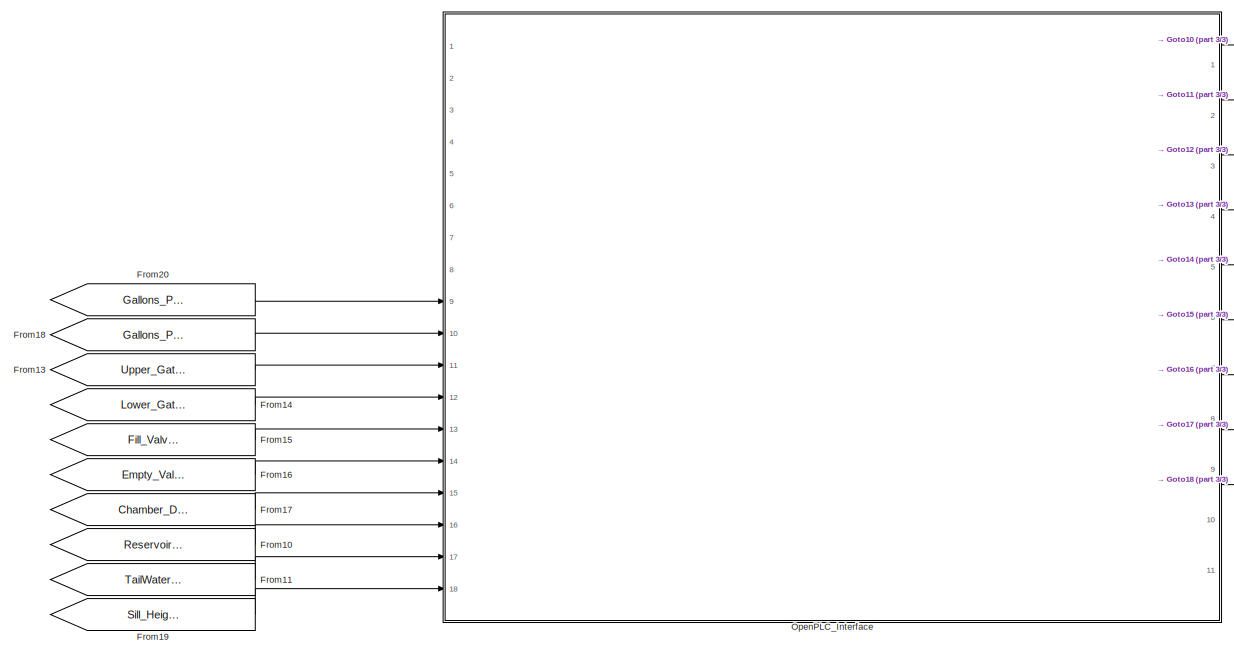
[diagram: root canvas - part 1/3, right side, full height]
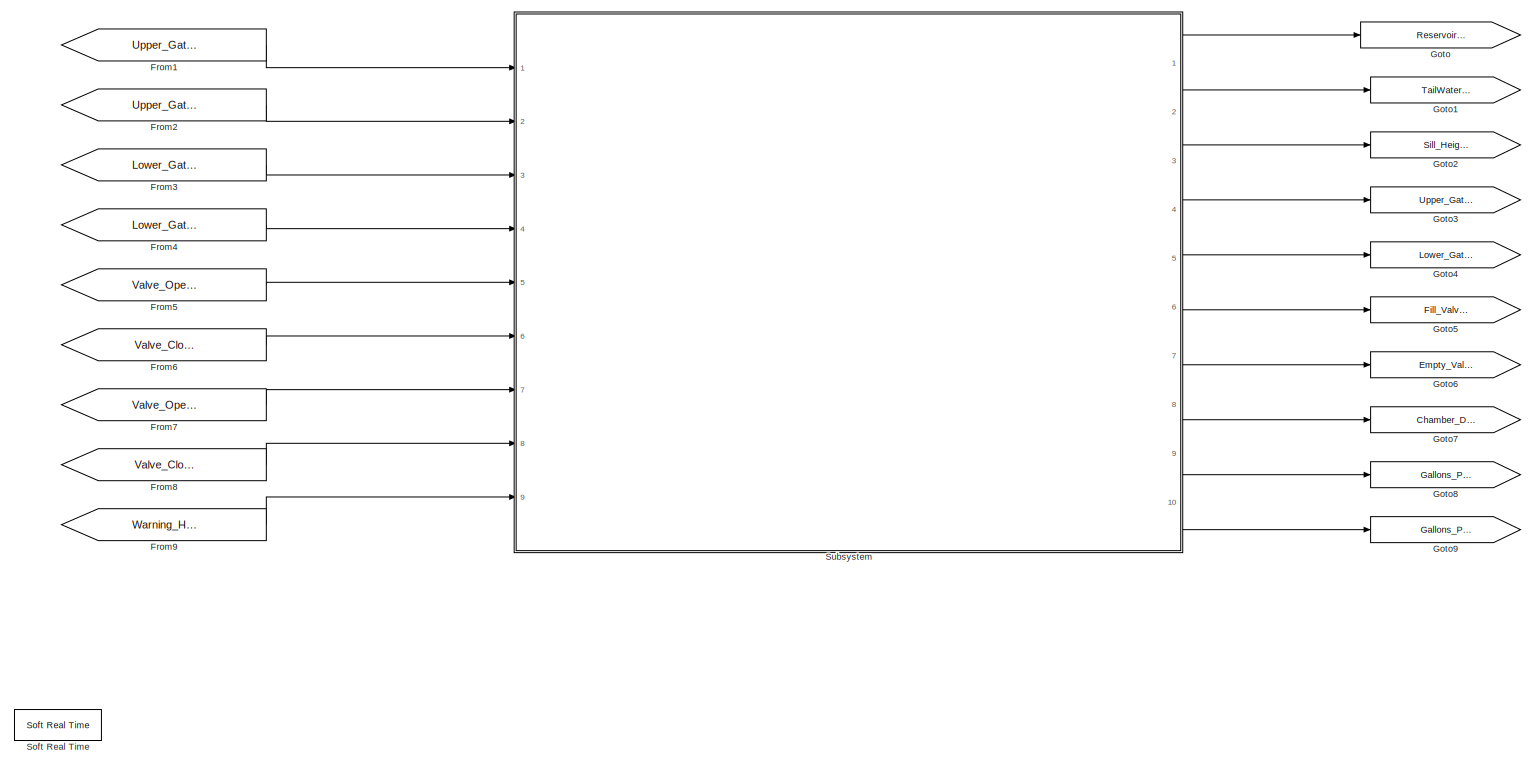
[diagram: root canvas - part 2/3, left side, full height]
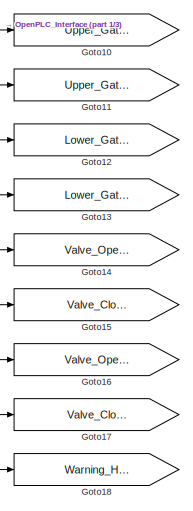
[diagram: root canvas - part 3/3, middle right region]
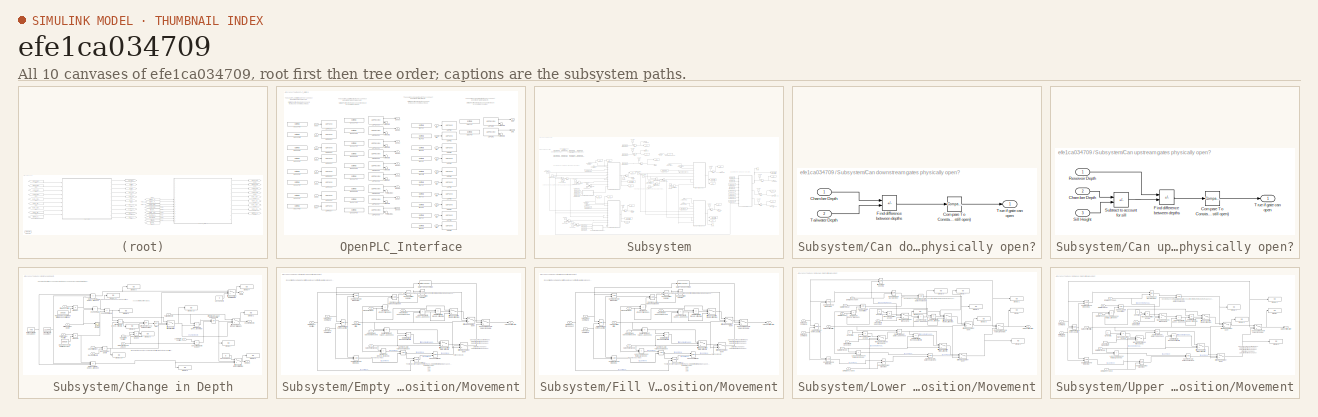
[diagram: thumbnail index - all 10 canvases of the model, root first then tree order]
MODEL slx_efe1ca034709
KIND model
CONFIG AbsTol = auto
CONFIG EnableMultiTasking = off
CONFIG FixedStep = auto
CONFIG MaxStep = auto
CONFIG MinStep = auto
CONFIG RelTol = 1e-3
CONFIG SampleTimeConstraint = Unconstrained
CONFIG Solver = FixedStepAuto
CONFIG SolverName = FixedStepAuto
CONFIG StartTime = 0.0
CONFIG StopTime = inf
WORKSPACE source: mxarray member
WORKSPACE PLC_IP_Address = 'localhost'
BLOCK [From] From1
  GotoTag = Upper_Gate_Open_Command
BLOCK [From] From10
  GotoTag = Reservoir_Depth
BLOCK [From] From11
  GotoTag = TailWater_Depth
BLOCK [From] From13
  GotoTag = Upper_Gate_Position
BLOCK [From] From14
  GotoTag = Lower_Gate_Position
BLOCK [From] From15
  GotoTag = Fill_Valve_Position
BLOCK [From] From16
  GotoTag = Empty_Valve_Position
BLOCK [From] From17
  GotoTag = Chamber_Depth
BLOCK [From] From18
  GotoTag = Gallons_Per_Second_Out
BLOCK [From] From19
  GotoTag = Sill_Height
BLOCK [From] From2
  GotoTag = Upper_Gate_Close_Command
BLOCK [From] From20
  GotoTag = Gallons_Per_Second_In
BLOCK [From] From3
  GotoTag = Lower_Gate_Open_Command
BLOCK [From] From4
  GotoTag = Lower_Gate_Close_Command
BLOCK [From] From5
  GotoTag = Valve_Open_Command_Fill
BLOCK [From] From6
  GotoTag = Valve_Close_Command_Fill
BLOCK [From] From7
  GotoTag = Valve_Open_Command_Empty
BLOCK [From] From8
  GotoTag = Valve_Close_Command_Empty
BLOCK [From] From9
  GotoTag = Warning_Horn_Sound
BLOCK [Goto] Goto
  GotoTag = Reservoir_Depth
BLOCK [Goto] Goto1
  GotoTag = TailWater_Depth
BLOCK [Goto] Goto10
  GotoTag = Upper_Gate_Open_Command
BLOCK [Goto] Goto11
  GotoTag = Upper_Gate_Close_Command
BLOCK [Goto] Goto12
  GotoTag = Lower_Gate_Open_Command
BLOCK [Goto] Goto13
  GotoTag = Lower_Gate_Close_Command
BLOCK [Goto] Goto14
  GotoTag = Valve_Open_Command_Fill
BLOCK [Goto] Goto15
  GotoTag = Valve_Close_Command_Fill
BLOCK [Goto] Goto16
  GotoTag = Valve_Open_Command_Empty
BLOCK [Goto] Goto17
  GotoTag = Valve_Close_Command_Empty
BLOCK [Goto] Goto18
  GotoTag = Warning_Horn_Sound
BLOCK [Goto] Goto2
  GotoTag = Sill_Height
BLOCK [Goto] Goto3
  GotoTag = Upper_Gate_Position
BLOCK [Goto] Goto4
  GotoTag = Lower_Gate_Position
BLOCK [Goto] Goto5
  GotoTag = Fill_Valve_Position
BLOCK [Goto] Goto6
  GotoTag = Empty_Valve_Position
BLOCK [Goto] Goto7
  GotoTag = Chamber_Depth
BLOCK [Goto] Goto8
  GotoTag = Gallons_Per_Second_In
BLOCK [Goto] Goto9
  GotoTag = Gallons_Per_Second_Out
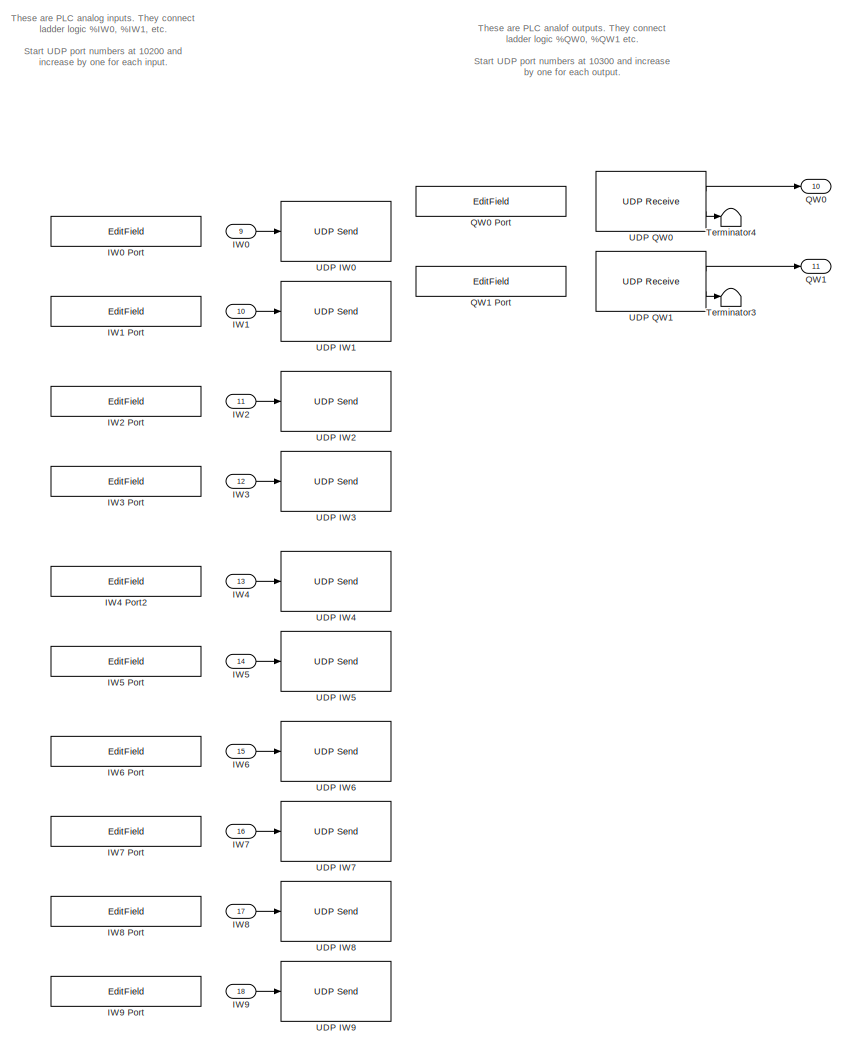
[diagram: OpenPLC_Interface - part 1/2, right side, full height]
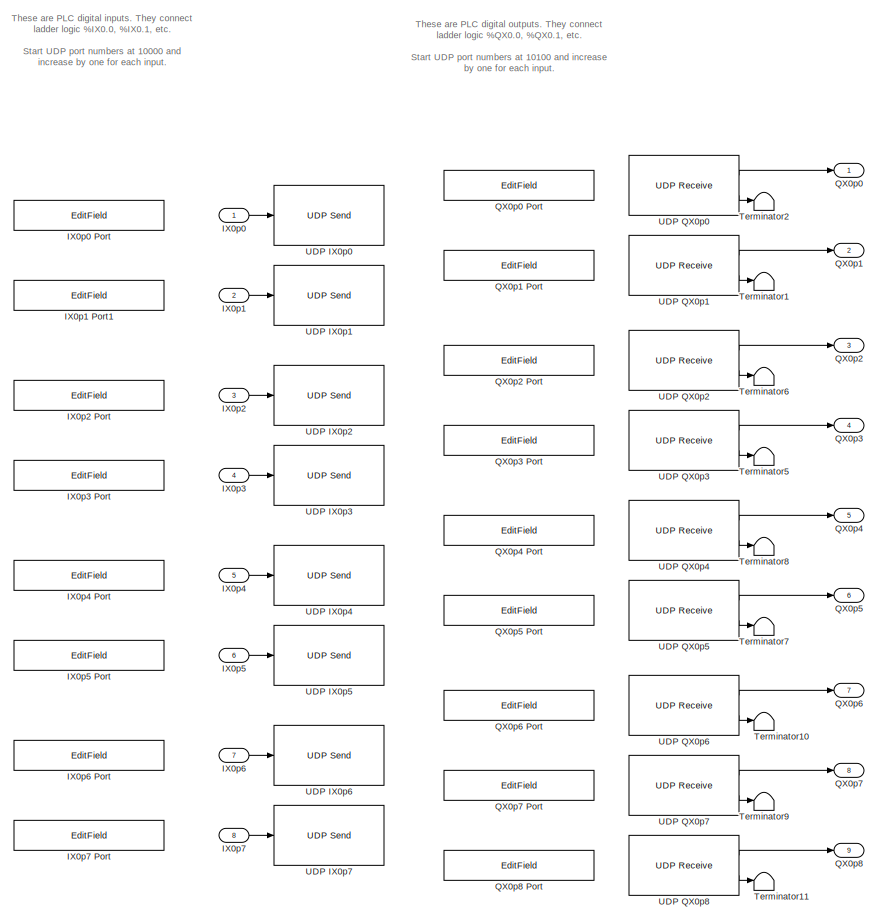
[diagram: OpenPLC_Interface - part 2/2, left side, full height]
BLOCK [SubSystem] OpenPLC_Interface
  Ports = [18, 11]
  RequestExecContextInheritance = off
BLOCK [Inport] OpenPLC_Interface/IW0
  Port = 9
BLOCK [EditField] OpenPLC_Interface/IW0 Port
  Alignment = Center
  LabelPosition = Hide
  ShowInitialText = on
BLOCK [Inport] OpenPLC_Interface/IW1
  Port = 10
BLOCK [EditField] OpenPLC_Interface/IW1 Port
  Alignment = Center
  LabelPosition = Hide
  ShowInitialText = on
BLOCK [Inport] OpenPLC_Interface/IW2
  Port = 11
BLOCK [EditField] OpenPLC_Interface/IW2 Port
  Alignment = Center
  LabelPosition = Hide
  ShowInitialText = on
BLOCK [Inport] OpenPLC_Interface/IW3
  Port = 12
BLOCK [EditField] OpenPLC_Interface/IW3 Port
  Alignment = Center
  LabelPosition = Hide
  ShowInitialText = on
BLOCK [Inport] OpenPLC_Interface/IW4
  Port = 13
BLOCK [EditField] OpenPLC_Interface/IW4 Port2
  Alignment = Center
  LabelPosition = Hide
  ShowInitialText = on
BLOCK [Inport] OpenPLC_Interface/IW5
  Port = 14
BLOCK [EditField] OpenPLC_Interface/IW5 Port
  Alignment = Center
  LabelPosition = Hide
  ShowInitialText = on
BLOCK [Inport] OpenPLC_Interface/IW6
  Port = 15
BLOCK [EditField] OpenPLC_Interface/IW6 Port
  Alignment = Center
  LabelPosition = Hide
  ShowInitialText = on
BLOCK [Inport] OpenPLC_Interface/IW7
  Port = 16
BLOCK [EditField] OpenPLC_Interface/IW7 Port
  Alignment = Center
  LabelPosition = Hide
  ShowInitialText = on
BLOCK [Inport] OpenPLC_Interface/IW8
  Port = 17
BLOCK [EditField] OpenPLC_Interface/IW8 Port
  Alignment = Center
  LabelPosition = Hide
  ShowInitialText = on
BLOCK [Inport] OpenPLC_Interface/IW9
  Port = 18
BLOCK [EditField] OpenPLC_Interface/IW9 Port
  Alignment = Center
  LabelPosition = Hide
  ShowInitialText = on
BLOCK [Inport] OpenPLC_Interface/IX0p0 
BLOCK [EditField] OpenPLC_Interface/IX0p0 Port
  Alignment = Center
  LabelPosition = Hide
  ShowInitialText = on
BLOCK [Inport] OpenPLC_Interface/IX0p1
  Port = 2
BLOCK [EditField] OpenPLC_Interface/IX0p1 Port1
  Alignment = Center
  LabelPosition = Hide
  ShowInitialText = on
BLOCK [Inport] OpenPLC_Interface/IX0p2
  Port = 3
BLOCK [EditField] OpenPLC_Interface/IX0p2 Port
  Alignment = Center
  LabelPosition = Hide
  ShowInitialText = on
BLOCK [Inport] OpenPLC_Interface/IX0p3
  Port = 4
BLOCK [EditField] OpenPLC_Interface/IX0p3 Port
  Alignment = Center
  LabelPosition = Hide
  ShowInitialText = on
BLOCK [Inport] OpenPLC_Interface/IX0p4
  Port = 5
BLOCK [EditField] OpenPLC_Interface/IX0p4 Port
  Alignment = Center
  LabelPosition = Hide
  ShowInitialText = on
BLOCK [Inport] OpenPLC_Interface/IX0p5
  Port = 6
BLOCK [EditField] OpenPLC_Interface/IX0p5 Port
  Alignment = Center
  LabelPosition = Hide
  ShowInitialText = on
BLOCK [Inport] OpenPLC_Interface/IX0p6
  Port = 7
BLOCK [EditField] OpenPLC_Interface/IX0p6 Port
  Alignment = Center
  LabelPosition = Hide
  ShowInitialText = on
BLOCK [Inport] OpenPLC_Interface/IX0p7
  Port = 8
BLOCK [EditField] OpenPLC_Interface/IX0p7 Port
  Alignment = Center
  LabelPosition = Hide
  ShowInitialText = on
BLOCK [Outport] OpenPLC_Interface/QW0
  Port = 10
BLOCK [EditField] OpenPLC_Interface/QW0 Port
  Alignment = Center
  LabelPosition = Hide
  ShowInitialText = on
BLOCK [Outport] OpenPLC_Interface/QW1
  Port = 11
BLOCK [EditField] OpenPLC_Interface/QW1 Port
  Alignment = Center
  LabelPosition = Hide
  ShowInitialText = on
BLOCK [Outport] OpenPLC_Interface/QX0p0
BLOCK [EditField] OpenPLC_Interface/QX0p0 Port
  Alignment = Center
  LabelPosition = Hide
  ShowInitialText = on
BLOCK [Outport] OpenPLC_Interface/QX0p1
  Port = 2
BLOCK [EditField] OpenPLC_Interface/QX0p1 Port
  Alignment = Center
  LabelPosition = Hide
  ShowInitialText = on
BLOCK [Outport] OpenPLC_Interface/QX0p2
  Port = 3
BLOCK [EditField] OpenPLC_Interface/QX0p2 Port
  Alignment = Center
  LabelPosition = Hide
  ShowInitialText = on
BLOCK [Outport] OpenPLC_Interface/QX0p3
  Port = 4
BLOCK [EditField] OpenPLC_Interface/QX0p3 Port
  Alignment = Center
  LabelPosition = Hide
  ShowInitialText = on
BLOCK [Outport] OpenPLC_Interface/QX0p4
  Port = 5
BLOCK [EditField] OpenPLC_Interface/QX0p4 Port
  Alignment = Center
  LabelPosition = Hide
  ShowInitialText = on
BLOCK [Outport] OpenPLC_Interface/QX0p5
  Port = 6
BLOCK [EditField] OpenPLC_Interface/QX0p5 Port
  Alignment = Center
  LabelPosition = Hide
  ShowInitialText = on
BLOCK [Outport] OpenPLC_Interface/QX0p6
  Port = 7
BLOCK [EditField] OpenPLC_Interface/QX0p6 Port
  Alignment = Center
  LabelPosition = Hide
  ShowInitialText = on
BLOCK [Outport] OpenPLC_Interface/QX0p7
  Port = 8
BLOCK [EditField] OpenPLC_Interface/QX0p7 Port
  Alignment = Center
  LabelPosition = Hide
  ShowInitialText = on
BLOCK [Outport] OpenPLC_Interface/QX0p8
  Port = 9
BLOCK [EditField] OpenPLC_Interface/QX0p8 Port 
  Alignment = Center
  LabelPosition = Hide
  ShowInitialText = on
BLOCK [Terminator] OpenPLC_Interface/Terminator1
BLOCK [Terminator] OpenPLC_Interface/Terminator10
BLOCK [Terminator] OpenPLC_Interface/Terminator11
BLOCK [Terminator] OpenPLC_Interface/Terminator2
BLOCK [Terminator] OpenPLC_Interface/Terminator3
BLOCK [Terminator] OpenPLC_Interface/Terminator4
BLOCK [Terminator] OpenPLC_Interface/Terminator5
BLOCK [Terminator] OpenPLC_Interface/Terminator6
BLOCK [Terminator] OpenPLC_Interface/Terminator7
BLOCK [Terminator] OpenPLC_Interface/Terminator8
BLOCK [Terminator] OpenPLC_Interface/Terminator9
BLOCK [Reference] OpenPLC_Interface/UDP IW0  REF=dspnetwork/UDP Send
  Ports = [1]
  SourceBlock = dspnetwork/UDP Send
  SourceProductBaseCode = SL
  SourceType = UDP Send
BLOCK [Reference] OpenPLC_Interface/UDP IW1  REF=dspnetwork/UDP Send
  Ports = [1]
  SourceBlock = dspnetwork/UDP Send
  SourceProductBaseCode = SL
  SourceType = UDP Send
BLOCK [Reference] OpenPLC_Interface/UDP IW2  REF=dspnetwork/UDP Send
  Ports = [1]
  SourceBlock = dspnetwork/UDP Send
  SourceProductBaseCode = SL
  SourceType = UDP Send
BLOCK [Reference] OpenPLC_Interface/UDP IW3  REF=dspnetwork/UDP Send
  Ports = [1]
  SourceBlock = dspnetwork/UDP Send
  SourceProductBaseCode = SL
  SourceType = UDP Send
BLOCK [Reference] OpenPLC_Interface/UDP IW4  REF=dspnetwork/UDP Send
  Ports = [1]
  SourceBlock = dspnetwork/UDP Send
  SourceProductBaseCode = SL
  SourceType = UDP Send
BLOCK [Reference] OpenPLC_Interface/UDP IW5  REF=dspnetwork/UDP Send
  Ports = [1]
  SourceBlock = dspnetwork/UDP Send
  SourceProductBaseCode = SL
  SourceType = UDP Send
BLOCK [Reference] OpenPLC_Interface/UDP IW6  REF=dspnetwork/UDP Send
  Ports = [1]
  SourceBlock = dspnetwork/UDP Send
  SourceProductBaseCode = SL
  SourceType = UDP Send
BLOCK [Reference] OpenPLC_Interface/UDP IW7  REF=dspnetwork/UDP Send
  Ports = [1]
  SourceBlock = dspnetwork/UDP Send
  SourceProductBaseCode = SL
  SourceType = UDP Send
BLOCK [Reference] OpenPLC_Interface/UDP IW8  REF=dspnetwork/UDP Send
  Ports = [1]
  SourceBlock = dspnetwork/UDP Send
  SourceProductBaseCode = SL
  SourceType = UDP Send
BLOCK [Reference] OpenPLC_Interface/UDP IW9  REF=dspnetwork/UDP Send
  Ports = [1]
  SourceBlock = dspnetwork/UDP Send
  SourceProductBaseCode = SL
  SourceType = UDP Send
BLOCK [Reference] OpenPLC_Interface/UDP IX0p0  REF=dspnetwork/UDP Send
  Ports = [1]
  SourceBlock = dspnetwork/UDP Send
  SourceProductBaseCode = SL
  SourceType = UDP Send
BLOCK [Reference] OpenPLC_Interface/UDP IX0p1  REF=dspnetwork/UDP Send
  Ports = [1]
  SourceBlock = dspnetwork/UDP Send
  SourceProductBaseCode = SL
  SourceType = UDP Send
BLOCK [Reference] OpenPLC_Interface/UDP IX0p2  REF=dspnetwork/UDP Send
  Ports = [1]
  SourceBlock = dspnetwork/UDP Send
  SourceProductBaseCode = SL
  SourceType = UDP Send
BLOCK [Reference] OpenPLC_Interface/UDP IX0p3  REF=dspnetwork/UDP Send
  Ports = [1]
  SourceBlock = dspnetwork/UDP Send
  SourceProductBaseCode = SL
  SourceType = UDP Send
BLOCK [Reference] OpenPLC_Interface/UDP IX0p4  REF=dspnetwork/UDP Send
  Ports = [1]
  SourceBlock = dspnetwork/UDP Send
  SourceProductBaseCode = SL
  SourceType = UDP Send
BLOCK [Reference] OpenPLC_Interface/UDP IX0p5  REF=dspnetwork/UDP Send
  Ports = [1]
  SourceBlock = dspnetwork/UDP Send
  SourceProductBaseCode = SL
  SourceType = UDP Send
BLOCK [Reference] OpenPLC_Interface/UDP IX0p6  REF=dspnetwork/UDP Send
  Ports = [1]
  SourceBlock = dspnetwork/UDP Send
  SourceProductBaseCode = SL
  SourceType = UDP Send
BLOCK [Reference] OpenPLC_Interface/UDP IX0p7  REF=dspnetwork/UDP Send
  Ports = [1]
  SourceBlock = dspnetwork/UDP Send
  SourceProductBaseCode = SL
  SourceType = UDP Send
BLOCK [Reference] OpenPLC_Interface/UDP QW0  REF=dspnetwork/UDP Receive
  Ports = [0, 2]
  SourceBlock = dspnetwork/UDP Receive
  SourceProductBaseCode = SL
  SourceType = UDP Receive
BLOCK [Reference] OpenPLC_Interface/UDP QW1  REF=dspnetwork/UDP Receive
  Ports = [0, 2]
  SourceBlock = dspnetwork/UDP Receive
  SourceProductBaseCode = SL
  SourceType = UDP Receive
BLOCK [Reference] OpenPLC_Interface/UDP QX0p0  REF=dspnetwork/UDP Receive
  Ports = [0, 2]
  SourceBlock = dspnetwork/UDP Receive
  SourceProductBaseCode = SL
  SourceType = UDP Receive
BLOCK [Reference] OpenPLC_Interface/UDP QX0p1  REF=dspnetwork/UDP Receive
  Ports = [0, 2]
  SourceBlock = dspnetwork/UDP Receive
  SourceProductBaseCode = SL
  SourceType = UDP Receive
BLOCK [Reference] OpenPLC_Interface/UDP QX0p2  REF=dspnetwork/UDP Receive
  Ports = [0, 2]
  SourceBlock = dspnetwork/UDP Receive
  SourceProductBaseCode = SL
  SourceType = UDP Receive
BLOCK [Reference] OpenPLC_Interface/UDP QX0p3  REF=dspnetwork/UDP Receive
  Ports = [0, 2]
  SourceBlock = dspnetwork/UDP Receive
  SourceProductBaseCode = SL
  SourceType = UDP Receive
BLOCK [Reference] OpenPLC_Interface/UDP QX0p4  REF=dspnetwork/UDP Receive
  Ports = [0, 2]
  SourceBlock = dspnetwork/UDP Receive
  SourceProductBaseCode = SL
  SourceType = UDP Receive
BLOCK [Reference] OpenPLC_Interface/UDP QX0p5  REF=dspnetwork/UDP Receive
  Ports = [0, 2]
  SourceBlock = dspnetwork/UDP Receive
  SourceProductBaseCode = SL
  SourceType = UDP Receive
BLOCK [Reference] OpenPLC_Interface/UDP QX0p6  REF=dspnetwork/UDP Receive
  Ports = [0, 2]
  SourceBlock = dspnetwork/UDP Receive
  SourceProductBaseCode = SL
  SourceType = UDP Receive
BLOCK [Reference] OpenPLC_Interface/UDP QX0p7  REF=dspnetwork/UDP Receive
  Ports = [0, 2]
  SourceBlock = dspnetwork/UDP Receive
  SourceProductBaseCode = SL
  SourceType = UDP Receive
BLOCK [Reference] OpenPLC_Interface/UDP QX0p8  REF=dspnetwork/UDP Receive
  Ports = [0, 2]
  SourceBlock = dspnetwork/UDP Receive
  SourceProductBaseCode = SL
  SourceType = UDP Receive
BLOCK [Reference] Soft Real Time  REF=utility/Soft Real Time  (lib defined in slx_8818c3a16fdf)
  Ports = []
  SourceBlock = utility/Soft Real Time
  SourceProductName = Soft Real Time Lib
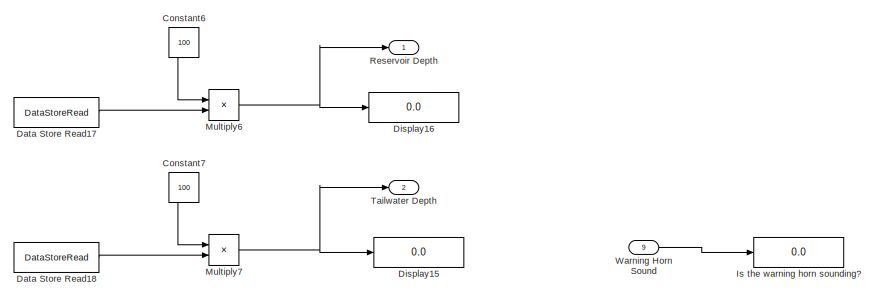
[diagram: Subsystem - part 1/7, top center region]
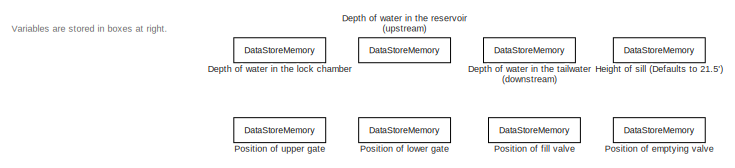
[diagram: Subsystem - part 2/7, top left region]
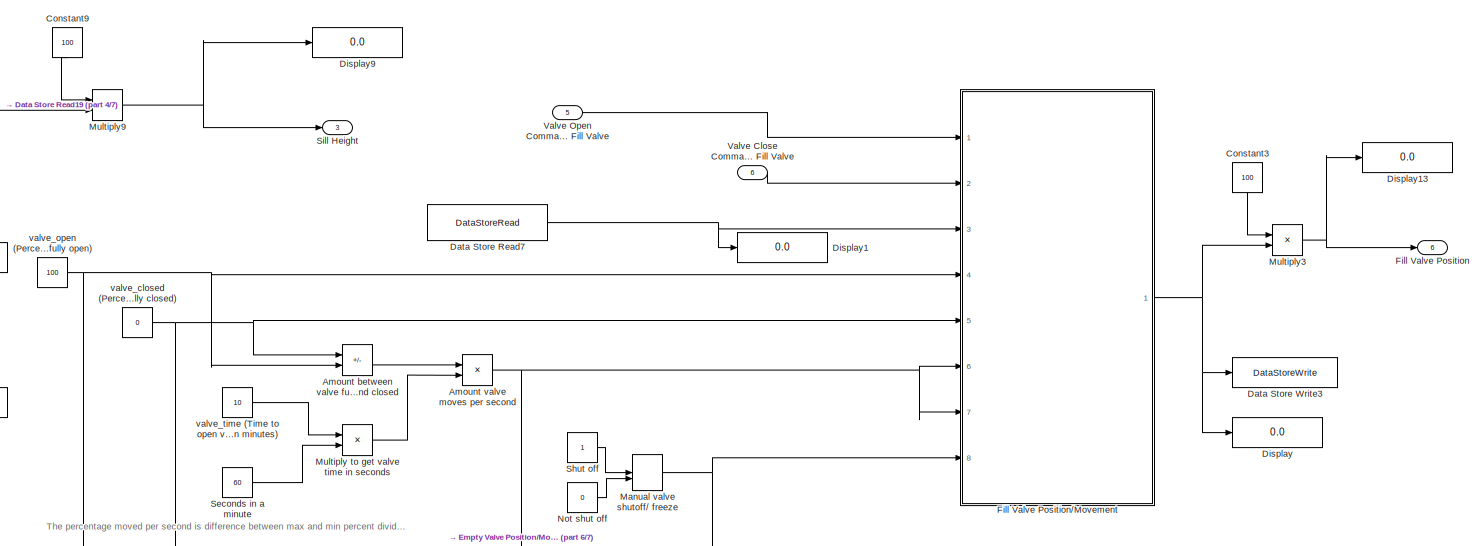
[diagram: Subsystem - part 3/7, central region]
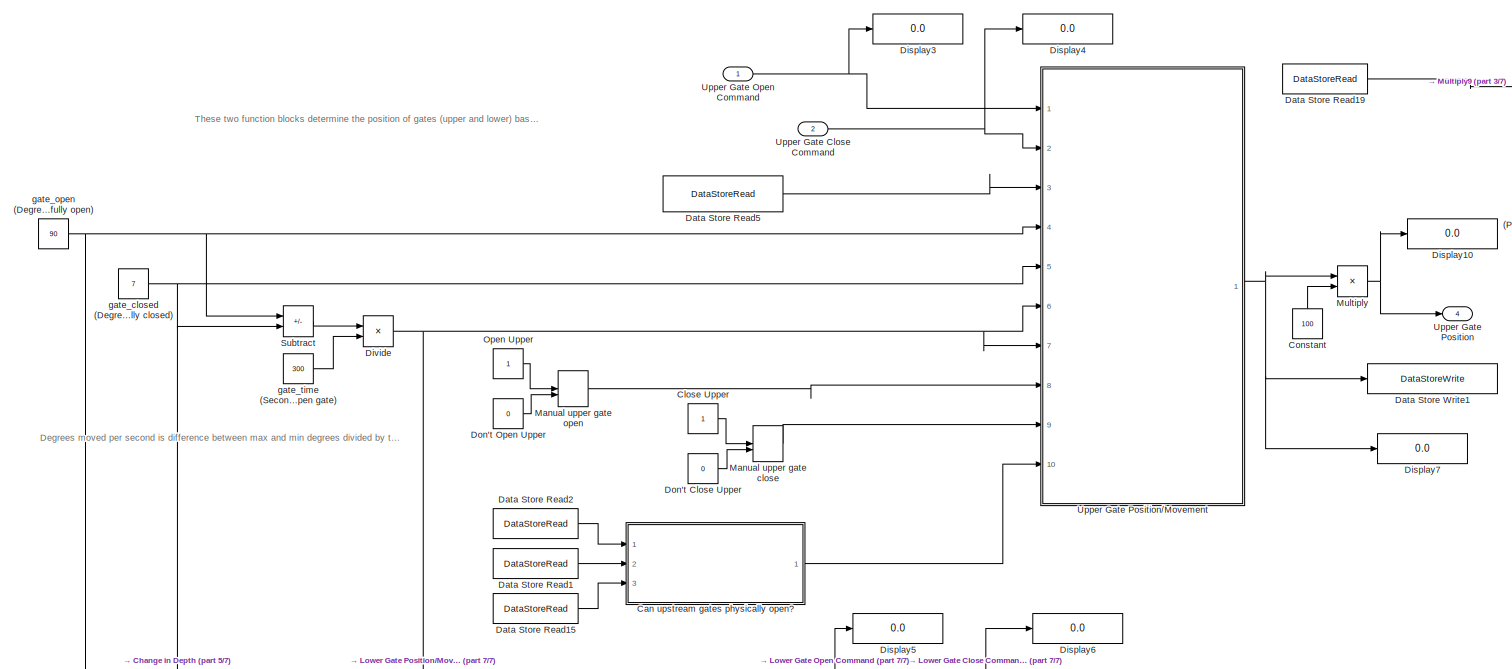
[diagram: Subsystem - part 4/7, middle left region]
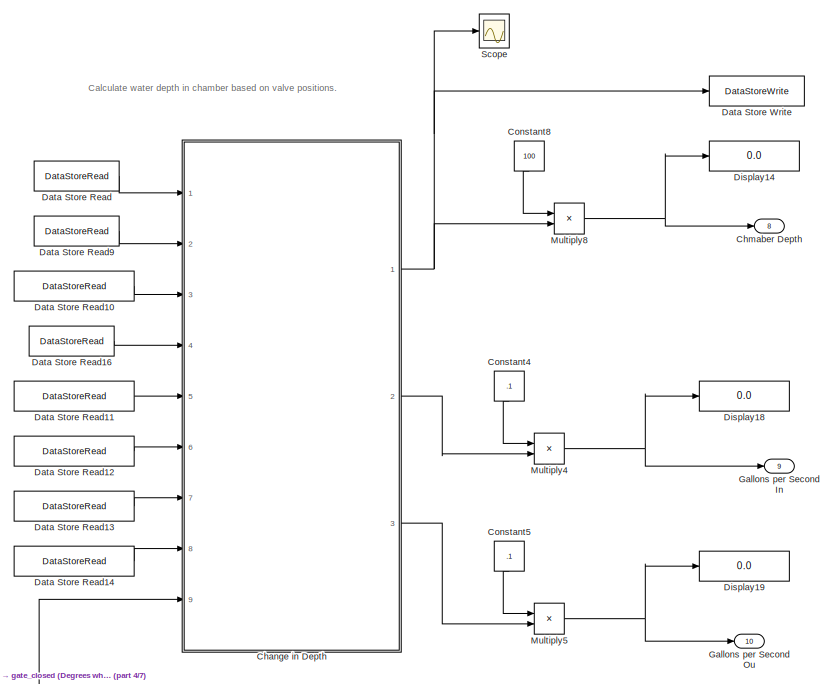
[diagram: Subsystem - part 5/7, middle right region]
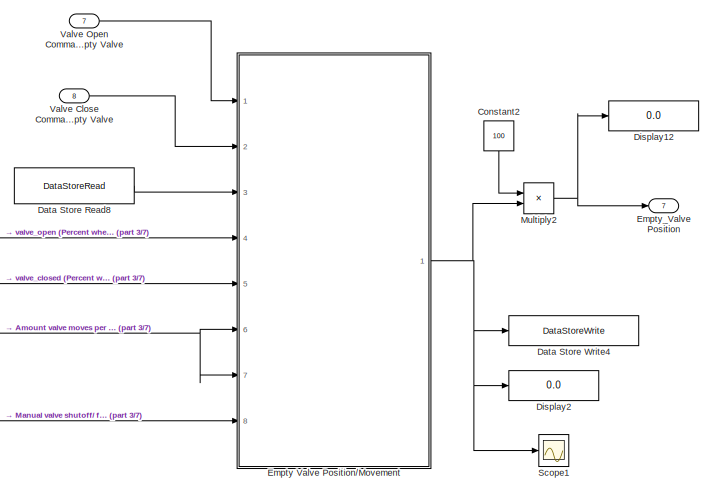
[diagram: Subsystem - part 6/7, bottom right region]
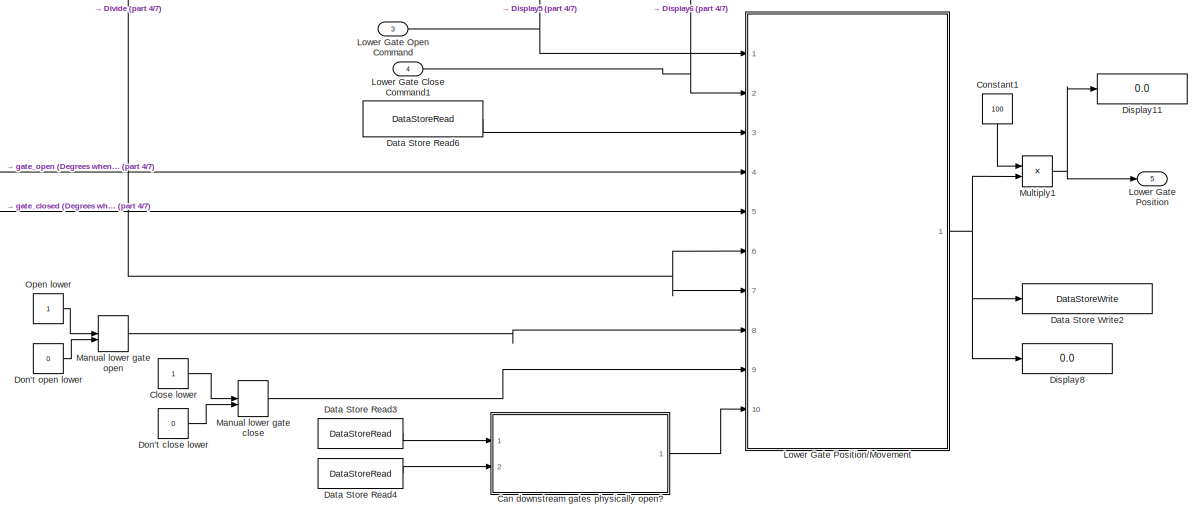
[diagram: Subsystem - part 7/7, bottom left region]
BLOCK [SubSystem] Subsystem
  Ports = [9, 10]
  RequestExecContextInheritance = off
BLOCK [Sum] Subsystem/Amount between valve fully open and closed
  IconShape = rectangular
  Inputs = -+
  OutDataTypeStr = uint8
  Ports = [2, 1]
BLOCK [Product] Subsystem/Amount valve moves per second
  Inputs = */
  OutDataTypeStr = double
  Ports = [2, 1]
BLOCK [SubSystem] Subsystem/Can downstream gates physically open?
  Ports = [2, 1]
  RequestExecContextInheritance = off
BLOCK [Inport] Subsystem/Can downstream gates physically open?/Chamber Depth
BLOCK [Reference] Subsystem/Can downstream gates physically open?/Compare To Constant (Difference allowed between depths for gate to still open)  REF=simulink/Logic and Bit
Operations/Compare
To Constant
  Ports = [1, 1]
  SourceBlock = simulink/Logic and Bit\nOperations/Compare\nTo Constant
  SourceProductBaseCode = SL
  SourceType = Compare To Constant
BLOCK [Sum] Subsystem/Can downstream gates physically open?/Find difference between depths
  IconShape = rectangular
  Inputs = +-
  Ports = [2, 1]
BLOCK [Inport] Subsystem/Can downstream gates physically open?/Tailwater Depth
  Port = 2
BLOCK [Outport] Subsystem/Can downstream gates physically open?/True if gate can open
  VectorParamsAs1DForOutWhenUnconnected = off
BLOCK [SubSystem] Subsystem/Can upstream gates physically open?
  Ports = [3, 1]
  RequestExecContextInheritance = off
BLOCK [Inport] Subsystem/Can upstream gates physically open?/Chamber Depth
  Port = 2
BLOCK [Reference] Subsystem/Can upstream gates physically open?/Compare To Constant (Difference allowed between depths for gate to still open)  REF=simulink/Logic and Bit
Operations/Compare
To Constant
  Ports = [1, 1]
  SourceBlock = simulink/Logic and Bit\nOperations/Compare\nTo Constant
  SourceProductBaseCode = SL
  SourceType = Compare To Constant
BLOCK [Sum] Subsystem/Can upstream gates physically open?/Find difference between depths
  IconShape = rectangular
  Inputs = +-
  Ports = [2, 1]
BLOCK [Inport] Subsystem/Can upstream gates physically open?/Reservoir Depth
BLOCK [Inport] Subsystem/Can upstream gates physically open?/Sill Height
  Port = 3
BLOCK [Sum] Subsystem/Can upstream gates physically open?/Subtract to account for sill
  IconShape = rectangular
  Inputs = +-
  Ports = [2, 1]
BLOCK [Outport] Subsystem/Can upstream gates physically open?/True if gate can open
  VectorParamsAs1DForOutWhenUnconnected = off
BLOCK [SubSystem] Subsystem/Change in Depth
  Ports = [9, 3]
  RequestExecContextInheritance = off
BLOCK [Constant] Subsystem/Change in Depth/Area of lock in square feet
  OutDataTypeStr = double
  Value = 121000
BLOCK [Outport] Subsystem/Change in Depth/Chamber Depth
  VectorParamsAs1DForOutWhenUnconnected = off
BLOCK [Sum] Subsystem/Change in Depth/Change In//Up
  IconShape = rectangular
  Ports = [2, 1]
BLOCK [Sum] Subsystem/Change in Depth/Change Out//Down
  IconShape = rectangular
  Inputs = +-
  Ports = [2, 1]
BLOCK [RelationalOperator] Subsystem/Change in Depth/Check if lower gate is open
  InputSameDT = off
  Operator = >
  OutDataTypeStr = boolean
  Ports = [2, 1]
  RndMeth = Simplest
BLOCK [RelationalOperator] Subsystem/Change in Depth/Check if upper gate is open
  InputSameDT = off
  Operator = >
  OutDataTypeStr = boolean
  Ports = [2, 1]
  RndMeth = Simplest
BLOCK [Display] Subsystem/Change in Depth/Display1
  Decimation = 1
  Ports = [1]
BLOCK [Display] Subsystem/Change in Depth/Display10
  Decimation = 1
  Ports = [1]
BLOCK [Display] Subsystem/Change in Depth/Display11
  Decimation = 1
  Ports = [1]
BLOCK [Display] Subsystem/Change in Depth/Display18
  Decimation = 1
  Ports = [1]
BLOCK [Display] Subsystem/Change in Depth/Display2
  Decimation = 1
  Ports = [1]
BLOCK [Display] Subsystem/Change in Depth/Display3
  Decimation = 1
  Ports = [1]
BLOCK [Display] Subsystem/Change in Depth/Display4
  Decimation = 1
  Ports = [1]
BLOCK [Display] Subsystem/Change in Depth/Display5
  Decimation = 1
  Ports = [1]
BLOCK [Display] Subsystem/Change in Depth/Display6
  Decimation = 1
  Ports = [1]
BLOCK [Display] Subsystem/Change in Depth/Display7
  Decimation = 1
  Ports = [1]
BLOCK [Display] Subsystem/Change in Depth/Display8
  Decimation = 1
  Ports = [1]
BLOCK [Display] Subsystem/Change in Depth/Display9
  Decimation = 1
  Ports = [1]
BLOCK [Constant] Subsystem/Change in Depth/Drop per second (in feet) with fully opened empty valve
  OutDataTypeStr = double
  Value = .00030
BLOCK [Logic] Subsystem/Change in Depth/Either would cause water level to be at max
  AllPortsSameDT = off
  Operator = OR
  OutDataTypeStr = boolean
  Ports = [2, 1]
BLOCK [Logic] Subsystem/Change in Depth/Either would cause water level to be at min
  AllPortsSameDT = off
  Operator = OR
  OutDataTypeStr = boolean
  Ports = [2, 1]
BLOCK [Inport] Subsystem/Change in Depth/Empty Valve Position
  Port = 3
BLOCK [Inport] Subsystem/Change in Depth/Fill Valve Position
  Port = 2
BLOCK [Outport] Subsystem/Change in Depth/Flow in
  Port = 2
  VectorParamsAs1DForOutWhenUnconnected = off
BLOCK [Outport] Subsystem/Change in Depth/Flow out
  Port = 3
  VectorParamsAs1DForOutWhenUnconnected = off
BLOCK [Constant] Subsystem/Change in Depth/Gallons of water per cubic foot
  OutDataTypeStr = double
  Value = 7.48
BLOCK [Product] Subsystem/Change in Depth/Gallons of water per second in, when fill valve fully open
  Inputs = 3
  Ports = [3, 1]
BLOCK [Product] Subsystem/Change in Depth/Gallons of water per second out, when empty valve fully open
  Inputs = 3
  Ports = [3, 1]
BLOCK [Inport] Subsystem/Change in Depth/Gate Fully Closed Amount
  Port = 9
BLOCK [RelationalOperator] Subsystem/Change in Depth/Greater Than (Checks that chamber isn't too empty)
  InputSameDT = off
  Operator = >
  OutDataTypeStr = boolean
  Ports = [2, 1]
  RndMeth = Simplest
BLOCK [RelationalOperator] Subsystem/Change in Depth/Greater Than (Checks that chamber isn't too full)
  InputSameDT = off
  Operator = >
  OutDataTypeStr = boolean
  Ports = [2, 1]
  RndMeth = Simplest
BLOCK [Switch] Subsystem/Change in Depth/If it's above full (true), then goes back to being right at full
  Criteria = u2 > Threshold
  InputSameDT = off
  SaturateOnIntegerOverflow = off
BLOCK [Switch] Subsystem/Change in Depth/If it's above full, no water is flowing
  Criteria = u2 > Threshold
  InputSameDT = off
  SaturateOnIntegerOverflow = off
BLOCK [Switch] Subsystem/Change in Depth/If it's below lowest, then goes back to being right at lowest
  Criteria = u2 > Threshold
  InputSameDT = off
  SaturateOnIntegerOverflow = off
BLOCK [Switch] Subsystem/Change in Depth/If it's even with lowest, no water is flowing
  Criteria = u2 > Threshold
  InputSameDT = off
  SaturateOnIntegerOverflow = off
BLOCK [Inport] Subsystem/Change in Depth/Initial Chamber Depth
BLOCK [Inport] Subsystem/Change in Depth/Lower Gate Position
  Port = 8
BLOCK [Sum] Subsystem/Change in Depth/Max Chamber Depth
  IconShape = rectangular
  Ports = [2, 1]
BLOCK [Logic] Subsystem/Change in Depth/NOT
  AllPortsSameDT = off
  IconShape = distinctive
  Operator = NOT
  OutDataTypeStr = boolean
  Ports = [1, 1]
BLOCK [Constant] Subsystem/Change in Depth/No change in
  OutDataTypeStr = double
  Value = 0
BLOCK [Constant] Subsystem/Change in Depth/No change out
  OutDataTypeStr = double
  Value = 0
BLOCK [Product] Subsystem/Change in Depth/Product
  Ports = [2, 1]
BLOCK [Product] Subsystem/Change in Depth/Product1
  Ports = [2, 1]
BLOCK [Constant] Subsystem/Change in Depth/Raise per second (in feet) with fully opened fill valve
  OutDataTypeStr = double
  Value = .00035
BLOCK [Inport] Subsystem/Change in Depth/Reservoir Depth
  Port = 5
BLOCK [Scope] Subsystem/Change in Depth/Scope
  Floating = off
  NumInputPorts = 2
  Ports = [2]
  ScopeSpecificationString = Simulink.scopes.TimeScopeBlockCfg('CurrentConfiguration', extmgr.ConfigurationSet(extmgr.Configuration('Core','General UI',true),extmgr.Configuration('Core','Source UI',true),extmgr.Configuration('Sources','WiredSimulink',true,'DataLoggingVariableName','ScopeData2'),extmgr.Configuration('Visuals','Time Domain',true,'SerializedDisplays',{struct('MinYLimReal','-6.08848','MaxYLimReal','118.0062','YLa...<+1695ch>
BLOCK [Inport] Subsystem/Change in Depth/Tailwater Depth
  Port = 6
BLOCK [Inport] Subsystem/Change in Depth/Upper Gate Position
  Port = 7
BLOCK [Inport] Subsystem/Change in Depth/Upper Sill Height
  Port = 4
BLOCK [Outport] Subsystem/Chmaber Depth
  NameLocation = top
  Port = 8
BLOCK [Constant] Subsystem/Close Upper
BLOCK [Constant] Subsystem/Close lower
BLOCK [Constant] Subsystem/Constant
  NameLocation = left
  Value = 100
BLOCK [Constant] Subsystem/Constant1
  NameLocation = left
  Value = 100
BLOCK [Constant] Subsystem/Constant2
  NameLocation = left
  Value = 100
BLOCK [Constant] Subsystem/Constant3
  NameLocation = left
  Value = 100
BLOCK [Constant] Subsystem/Constant4
  NameLocation = left
  Value = .1
BLOCK [Constant] Subsystem/Constant5
  NameLocation = left
  Value = .1
BLOCK [Constant] Subsystem/Constant6
  NameLocation = left
  Value = 100
BLOCK [Constant] Subsystem/Constant7
  NameLocation = left
  Value = 100
BLOCK [Constant] Subsystem/Constant8
  NameLocation = left
  Value = 100
BLOCK [Constant] Subsystem/Constant9
  NameLocation = left
  Value = 100
BLOCK [DataStoreRead] Subsystem/Data Store Read
  DataStoreName = chamber_depth
  Ports = [0, 1]
BLOCK [DataStoreRead] Subsystem/Data Store Read1
  DataStoreName = chamber_depth
  Ports = [0, 1]
  Priority = 0
BLOCK [DataStoreRead] Subsystem/Data Store Read10
  DataStoreName = empty_valve_position
  Ports = [0, 1]
BLOCK [DataStoreRead] Subsystem/Data Store Read11
  DataStoreName = reservoir_depth
  Ports = [0, 1]
BLOCK [DataStoreRead] Subsystem/Data Store Read12
  DataStoreName = tailwater_depth
  Ports = [0, 1]
BLOCK [DataStoreRead] Subsystem/Data Store Read13
  DataStoreName = upper_gate_position
  Ports = [0, 1]
BLOCK [DataStoreRead] Subsystem/Data Store Read14
  DataStoreName = lower_gate_position
  Ports = [0, 1]
BLOCK [DataStoreRead] Subsystem/Data Store Read15
  DataStoreName = sill_height
  Ports = [0, 1]
  Priority = 0
BLOCK [DataStoreRead] Subsystem/Data Store Read16
  DataStoreName = sill_height
  Ports = [0, 1]
  Priority = 0
BLOCK [DataStoreRead] Subsystem/Data Store Read17
  DataStoreName = reservoir_depth
  Ports = [0, 1]
  Priority = 0
BLOCK [DataStoreRead] Subsystem/Data Store Read18
  DataStoreName = tailwater_depth
  Ports = [0, 1]
  Priority = 0
BLOCK [DataStoreRead] Subsystem/Data Store Read19
  DataStoreName = sill_height
  Ports = [0, 1]
  Priority = 0
BLOCK [DataStoreRead] Subsystem/Data Store Read2
  DataStoreName = reservoir_depth
  Ports = [0, 1]
  Priority = 0
BLOCK [DataStoreRead] Subsystem/Data Store Read3
  DataStoreName = chamber_depth
  Ports = [0, 1]
BLOCK [DataStoreRead] Subsystem/Data Store Read4
  DataStoreName = tailwater_depth
  Ports = [0, 1]
BLOCK [DataStoreRead] Subsystem/Data Store Read5
  DataStoreName = upper_gate_position
  Ports = [0, 1]
  Priority = 0
BLOCK [DataStoreRead] Subsystem/Data Store Read6
  DataStoreName = lower_gate_position
  Ports = [0, 1]
  Priority = 0
BLOCK [DataStoreRead] Subsystem/Data Store Read7
  DataStoreName = fill_valve_position
  Ports = [0, 1]
  Priority = 0
BLOCK [DataStoreRead] Subsystem/Data Store Read8
  DataStoreName = empty_valve_position
  Ports = [0, 1]
  Priority = 0
BLOCK [DataStoreRead] Subsystem/Data Store Read9
  DataStoreName = fill_valve_position
  Ports = [0, 1]
BLOCK [DataStoreWrite] Subsystem/Data Store Write
  DataStoreName = chamber_depth
  Ports = [1]
BLOCK [DataStoreWrite] Subsystem/Data Store Write1
  DataStoreName = upper_gate_position
  Ports = [1]
  Priority = 9
BLOCK [DataStoreWrite] Subsystem/Data Store Write2
  DataStoreName = lower_gate_position
  Ports = [1]
  Priority = 9
BLOCK [DataStoreWrite] Subsystem/Data Store Write3
  DataStoreName = fill_valve_position
  Ports = [1]
  Priority = 9
BLOCK [DataStoreWrite] Subsystem/Data Store Write4
  DataStoreName = empty_valve_position
  Ports = [1]
  Priority = 9
BLOCK [DataStoreMemory] Subsystem/Depth of water in the lock chamber
  DataStoreName = chamber_depth
  InitialValue = 42.5
  ReadBeforeWriteMsg = warning
  ShowAdditionalParam = off
  WriteAfterReadMsg = warning
  WriteAfterWriteMsg = warning
BLOCK [DataStoreMemory] Subsystem/Depth of water in the reservoir (upstream)
  DataStoreName = reservoir_depth
  InitialValue = 21
  ReadBeforeWriteMsg = warning
  ShowAdditionalParam = off
  WriteAfterReadMsg = warning
  WriteAfterWriteMsg = warning
BLOCK [DataStoreMemory] Subsystem/Depth of water in the tailwater (downstream)
  DataStoreName = tailwater_depth
  InitialValue = 21
  ReadBeforeWriteMsg = warning
  ShowAdditionalParam = off
  WriteAfterReadMsg = warning
  WriteAfterWriteMsg = warning
BLOCK [Display] Subsystem/Display
  Decimation = 1
  Ports = [1]
BLOCK [Display] Subsystem/Display1
  Decimation = 1
  Ports = [1]
BLOCK [Display] Subsystem/Display10
  Decimation = 1
  Format = long
  Ports = [1]
BLOCK [Display] Subsystem/Display11
  Decimation = 1
  Format = long
  Ports = [1]
BLOCK [Display] Subsystem/Display12
  Decimation = 1
  Ports = [1]
BLOCK [Display] Subsystem/Display13
  Decimation = 1
  Ports = [1]
BLOCK [Display] Subsystem/Display14
  Decimation = 1
  Ports = [1]
BLOCK [Display] Subsystem/Display15
  Decimation = 1
  Format = long
  Ports = [1]
BLOCK [Display] Subsystem/Display16
  Decimation = 1
  Format = long
  Ports = [1]
BLOCK [Display] Subsystem/Display18
  Decimation = 1
  Ports = [1]
BLOCK [Display] Subsystem/Display19
  Decimation = 1
  Ports = [1]
BLOCK [Display] Subsystem/Display2
  Decimation = 1
  Ports = [1]
BLOCK [Display] Subsystem/Display3
  Decimation = 1
  Ports = [1]
BLOCK [Display] Subsystem/Display4
  Decimation = 1
  Ports = [1]
BLOCK [Display] Subsystem/Display5
  Decimation = 1
  Ports = [1]
BLOCK [Display] Subsystem/Display6
  Decimation = 1
  Ports = [1]
BLOCK [Display] Subsystem/Display7
  Decimation = 1
  Format = long
  Ports = [1]
BLOCK [Display] Subsystem/Display8
  Decimation = 1
  Format = long
  Ports = [1]
BLOCK [Display] Subsystem/Display9
  Decimation = 1
  Format = long
  Ports = [1]
BLOCK [Product] Subsystem/Divide
  Inputs = */
  OutDataTypeStr = double
  Ports = [2, 1]
BLOCK [Constant] Subsystem/Don't Close Upper
  Value = 0
BLOCK [Constant] Subsystem/Don't Open Upper
  Value = 0
BLOCK [Constant] Subsystem/Don't close lower
  Value = 0
BLOCK [Constant] Subsystem/Don't open lower
  Value = 0
BLOCK [SubSystem] Subsystem/Empty Valve Position//Movement
  Ports = [8, 1]
  RequestExecContextInheritance = off
BLOCK [Sum] Subsystem/Empty Valve Position//Movement/Add amount gate opens per second to current openness
  IconShape = rectangular
  Ports = [2, 1]
BLOCK [Inport] Subsystem/Empty Valve Position//Movement/Amount valve closes per second
  Port = 7
BLOCK [Inport] Subsystem/Empty Valve Position//Movement/Amount valve opens per second
  Port = 6
BLOCK [Logic] Subsystem/Empty Valve Position//Movement/Can move AND valve should close
  AllPortsSameDT = off
  OutDataTypeStr = boolean
  Ports = [2, 1]
BLOCK [Logic] Subsystem/Empty Valve Position//Movement/Can move AND valve should open
  AllPortsSameDT = off
  OutDataTypeStr = boolean
  Ports = [2, 1]
BLOCK [Switch] Subsystem/Empty Valve Position//Movement/Choose which new value is correct, based upon the open command. See annotation below.
  Criteria = u2 > Threshold
  InputSameDT = off
  SaturateOnIntegerOverflow = off
BLOCK [Logic] Subsystem/Empty Valve Position//Movement/Command is only for closing.
  AllPortsSameDT = off
  OutDataTypeStr = boolean
  Ports = [2, 1]
BLOCK [Logic] Subsystem/Empty Valve Position//Movement/Command is only for opening.
  AllPortsSameDT = off
  OutDataTypeStr = boolean
  Ports = [2, 1]
BLOCK [DataTypeConversion] Subsystem/Empty Valve Position//Movement/Data Type Conversion
  RndMeth = Floor
  SaturateOnIntegerOverflow = off
BLOCK [Sum] Subsystem/Empty Valve Position//Movement/Determine if gate moved past the max
  IconShape = rectangular
  Inputs = -+
  Ports = [2, 1]
BLOCK [Sum] Subsystem/Empty Valve Position//Movement/Determine if gate moved past the min
  IconShape = rectangular
  Inputs = +-
  Ports = [2, 1]
BLOCK [Switch] Subsystem/Empty Valve Position//Movement/Either close gate or don't
  Criteria = u2 ~= 0
  InputSameDT = off
  RndMeth = Simplest
  SaturateOnIntegerOverflow = off
BLOCK [Switch] Subsystem/Empty Valve Position//Movement/Either open gate or don't
  Criteria = u2 > Threshold
  InputSameDT = off
  SaturateOnIntegerOverflow = off
BLOCK [Inport] Subsystem/Empty Valve Position//Movement/Emergency Override
  Port = 8
BLOCK [RelationalOperator] Subsystem/Empty Valve Position//Movement/Greater Than (Checks that valve isn't already fully closed)
  InputSameDT = off
  Operator = <
  OutDataTypeStr = boolean
  Ports = [2, 1]
  RndMeth = Simplest
BLOCK [RelationalOperator] Subsystem/Empty Valve Position//Movement/Greater Than (Checks that valve isn't already fully open)
  InputSameDT = off
  Operator = <
  OutDataTypeStr = boolean
  Ports = [2, 1]
  RndMeth = Simplest
BLOCK [Switch] Subsystem/Empty Valve Position//Movement/If it moves past the maximum, it will stop at the max
  Criteria = u2 > Threshold
  InputSameDT = off
  SaturateOnIntegerOverflow = off
BLOCK [Switch] Subsystem/Empty Valve Position//Movement/If it moves past the minimum, it will stop at the min
  Criteria = u2 > Threshold
  InputSameDT = off
  SaturateOnIntegerOverflow = off
BLOCK [Logic] Subsystem/Empty Valve Position//Movement/See annotation (1)
  AllPortsSameDT = off
  OutDataTypeStr = boolean
  Ports = [2, 1]
BLOCK [Logic] Subsystem/Empty Valve Position//Movement/See annotation (2)
  AllPortsSameDT = off
  IconShape = distinctive
  Operator = XOR
  OutDataTypeStr = boolean
  Ports = [2, 1]
BLOCK [Logic] Subsystem/Empty Valve Position//Movement/See annotation below  (1)
  AllPortsSameDT = off
  OutDataTypeStr = boolean
  Ports = [2, 1]
BLOCK [Logic] Subsystem/Empty Valve Position//Movement/See annotation below (2)
  AllPortsSameDT = off
  IconShape = distinctive
  Operator = XOR
  OutDataTypeStr = boolean
  Ports = [2, 1]
BLOCK [Sum] Subsystem/Empty Valve Position//Movement/Subtract amount valve closes per second from current openness
  IconShape = rectangular
  Inputs = +-
  Ports = [2, 1]
BLOCK [Inport] Subsystem/Empty Valve Position//Movement/Valve Close Command
  Port = 2
BLOCK [Inport] Subsystem/Empty Valve Position//Movement/Valve Fully Closed
  Port = 5
BLOCK [Inport] Subsystem/Empty Valve Position//Movement/Valve Fully Open
  Port = 4
BLOCK [Inport] Subsystem/Empty Valve Position//Movement/Valve Open Command
BLOCK [Outport] Subsystem/Empty Valve Position//Movement/Valve Position After
  VectorParamsAs1DForOutWhenUnconnected = off
BLOCK [Inport] Subsystem/Empty Valve Position//Movement/Valve Position Initial
  Port = 3
BLOCK [Logic] Subsystem/Empty Valve Position//Movement/XOR Can't have both high. If so, out is 0.
  AllPortsSameDT = off
  IconShape = distinctive
  Operator = XOR
  OutDataTypeStr = boolean
  Ports = [2, 1]
BLOCK [Outport] Subsystem/Empty_Valve Position
  NameLocation = top
  Port = 7
BLOCK [Outport] Subsystem/Fill Valve Position
  NameLocation = top
  Port = 6
BLOCK [SubSystem] Subsystem/Fill Valve Position//Movement
  Ports = [8, 1]
  RequestExecContextInheritance = off
BLOCK [Sum] Subsystem/Fill Valve Position//Movement/Add amount gate opens per second to current openness
  IconShape = rectangular
  Ports = [2, 1]
BLOCK [Inport] Subsystem/Fill Valve Position//Movement/Amount valve closes per second
  Port = 7
BLOCK [Inport] Subsystem/Fill Valve Position//Movement/Amount valve opens per second
  Port = 6
BLOCK [Logic] Subsystem/Fill Valve Position//Movement/Can move AND valve should close
  AllPortsSameDT = off
  OutDataTypeStr = boolean
  Ports = [2, 1]
BLOCK [Logic] Subsystem/Fill Valve Position//Movement/Can move AND valve should open
  AllPortsSameDT = off
  OutDataTypeStr = boolean
  Ports = [2, 1]
BLOCK [Switch] Subsystem/Fill Valve Position//Movement/Choose which new value is correct, based upon the open command. See annotation below.
  Criteria = u2 > Threshold
  InputSameDT = off
  SaturateOnIntegerOverflow = off
BLOCK [Logic] Subsystem/Fill Valve Position//Movement/Command is only for closing.
  AllPortsSameDT = off
  OutDataTypeStr = boolean
  Ports = [2, 1]
BLOCK [Logic] Subsystem/Fill Valve Position//Movement/Command is only for opening.
  AllPortsSameDT = off
  OutDataTypeStr = boolean
  Ports = [2, 1]
BLOCK [DataTypeConversion] Subsystem/Fill Valve Position//Movement/Data Type Conversion
  RndMeth = Floor
  SaturateOnIntegerOverflow = off
BLOCK [Sum] Subsystem/Fill Valve Position//Movement/Determine if gate moved past the max
  IconShape = rectangular
  Inputs = -+
  Ports = [2, 1]
BLOCK [Sum] Subsystem/Fill Valve Position//Movement/Determine if gate moved past the min
  IconShape = rectangular
  Inputs = +-
  Ports = [2, 1]
BLOCK [Switch] Subsystem/Fill Valve Position//Movement/Either close gate or don't
  Criteria = u2 ~= 0
  InputSameDT = off
  RndMeth = Simplest
  SaturateOnIntegerOverflow = off
BLOCK [Switch] Subsystem/Fill Valve Position//Movement/Either open gate or don't
  Criteria = u2 > Threshold
  InputSameDT = off
  SaturateOnIntegerOverflow = off
BLOCK [Inport] Subsystem/Fill Valve Position//Movement/Emergency Disconnect
  Port = 8
BLOCK [RelationalOperator] Subsystem/Fill Valve Position//Movement/Greater Than (Checks that valve isn't already fully open)
  InputSameDT = off
  Operator = <
  OutDataTypeStr = boolean
  Ports = [2, 1]
  RndMeth = Simplest
BLOCK [Switch] Subsystem/Fill Valve Position//Movement/If it moves past the maximum, it will stop at the max
  Criteria = u2 > Threshold
  InputSameDT = off
  SaturateOnIntegerOverflow = off
BLOCK [Switch] Subsystem/Fill Valve Position//Movement/If it moves past the minimum, it will stop at the min
  Criteria = u2 > Threshold
  InputSameDT = off
  SaturateOnIntegerOverflow = off
BLOCK [RelationalOperator] Subsystem/Fill Valve Position//Movement/Less Than (Checks that valve isn't already fully closed)
  InputSameDT = off
  Operator = <
  OutDataTypeStr = boolean
  Ports = [2, 1]
  RndMeth = Simplest
BLOCK [Logic] Subsystem/Fill Valve Position//Movement/See annotation (1)
  AllPortsSameDT = off
  OutDataTypeStr = boolean
  Ports = [2, 1]
BLOCK [Logic] Subsystem/Fill Valve Position//Movement/See annotation (2)
  AllPortsSameDT = off
  IconShape = distinctive
  Operator = XOR
  OutDataTypeStr = boolean
  Ports = [2, 1]
BLOCK [Logic] Subsystem/Fill Valve Position//Movement/See annotation below  (1)
  AllPortsSameDT = off
  OutDataTypeStr = boolean
  Ports = [2, 1]
BLOCK [Logic] Subsystem/Fill Valve Position//Movement/See annotation below (2)
  AllPortsSameDT = off
  IconShape = distinctive
  Operator = XOR
  OutDataTypeStr = boolean
  Ports = [2, 1]
BLOCK [Sum] Subsystem/Fill Valve Position//Movement/Subtract amount valve closes per second from current openness
  IconShape = rectangular
  Inputs = +-
  Ports = [2, 1]
BLOCK [Inport] Subsystem/Fill Valve Position//Movement/Valve Close Command
  Port = 2
BLOCK [Inport] Subsystem/Fill Valve Position//Movement/Valve Fully Closed
  Port = 5
BLOCK [Inport] Subsystem/Fill Valve Position//Movement/Valve Fully Open
  Port = 4
BLOCK [Inport] Subsystem/Fill Valve Position//Movement/Valve Open Command
BLOCK [Outport] Subsystem/Fill Valve Position//Movement/Valve Position After
  VectorParamsAs1DForOutWhenUnconnected = off
BLOCK [Inport] Subsystem/Fill Valve Position//Movement/Valve Position Initial
  Port = 3
BLOCK [Logic] Subsystem/Fill Valve Position//Movement/XOR Can't have both high. If so, out is 0.
  AllPortsSameDT = off
  IconShape = distinctive
  Operator = XOR
  OutDataTypeStr = boolean
  Ports = [2, 1]
BLOCK [Outport] Subsystem/Gallons per Second In
  NameLocation = top
  Port = 9
BLOCK [Outport] Subsystem/Gallons per Second Ou
  NameLocation = top
  Port = 10
BLOCK [DataStoreMemory] Subsystem/Height of sill (Defaults to 21.5')
  DataStoreName = sill_height
  InitialValue = 21.5
  ReadBeforeWriteMsg = warning
  ShowAdditionalParam = off
  WriteAfterReadMsg = warning
  WriteAfterWriteMsg = warning
BLOCK [Display] Subsystem/Is the warning horn sounding?
  Decimation = 1
  Format = long
  Ports = [1]
BLOCK [Inport] Subsystem/Lower Gate Close Command1
  Port = 4
BLOCK [Inport] Subsystem/Lower Gate Open Command
  Port = 3
BLOCK [Outport] Subsystem/Lower Gate Position
  NameLocation = top
  Port = 5
BLOCK [SubSystem] Subsystem/Lower Gate Position//Movement
  Ports = [10, 1]
  RequestExecContextInheritance = off
BLOCK [Sum] Subsystem/Lower Gate Position//Movement/Add amount gate opens per second to current openness
  IconShape = rectangular
  Ports = [2, 1]
BLOCK [Inport] Subsystem/Lower Gate Position//Movement/Amount gate closes//sec
  Port = 7
BLOCK [Inport] Subsystem/Lower Gate Position//Movement/Amount gate opens//sec
  Port = 6
BLOCK [Logic] Subsystem/Lower Gate Position//Movement/Can move AND gate should close
  AllPortsSameDT = off
  OutDataTypeStr = boolean
  Ports = [2, 1]
BLOCK [Logic] Subsystem/Lower Gate Position//Movement/Can move AND gate should open
  AllPortsSameDT = off
  OutDataTypeStr = boolean
  Ports = [2, 1]
BLOCK [Logic] Subsystem/Lower Gate Position//Movement/Can physically open further
  AllPortsSameDT = off
  OutDataTypeStr = boolean
  Ports = [2, 1]
BLOCK [Switch] Subsystem/Lower Gate Position//Movement/Choose which new value is correct, based upon the open command. See annotation below.
  Criteria = u2 > Threshold
  InputSameDT = off
  SaturateOnIntegerOverflow = off
BLOCK [Logic] Subsystem/Lower Gate Position//Movement/Command is only for closing.
  AllPortsSameDT = off
  OutDataTypeStr = boolean
  Ports = [2, 1]
BLOCK [Logic] Subsystem/Lower Gate Position//Movement/Command is only for opening.
  AllPortsSameDT = off
  OutDataTypeStr = boolean
  Ports = [2, 1]
BLOCK [Constant] Subsystem/Lower Gate Position//Movement/Constant
  Value = 2
BLOCK [Constant] Subsystem/Lower Gate Position//Movement/Constant1
  Value = 2
BLOCK [Sum] Subsystem/Lower Gate Position//Movement/Determine if gate moved past the max
  IconShape = rectangular
  Inputs = -+
  Ports = [2, 1]
BLOCK [Sum] Subsystem/Lower Gate Position//Movement/Determine if gate moved past the min
  IconShape = rectangular
  Inputs = +-
  Ports = [2, 1]
BLOCK [Display] Subsystem/Lower Gate Position//Movement/Display
  Decimation = 1
  Ports = [1]
BLOCK [Display] Subsystem/Lower Gate Position//Movement/Display1
  Decimation = 1
  Ports = [1]
BLOCK [Display] Subsystem/Lower Gate Position//Movement/Display2
  Decimation = 1
  Ports = [1]
BLOCK [Display] Subsystem/Lower Gate Position//Movement/Display3
  Decimation = 1
  Ports = [1]
BLOCK [Display] Subsystem/Lower Gate Position//Movement/Display4
  Decimation = 1
  Ports = [1]
BLOCK [Display] Subsystem/Lower Gate Position//Movement/Display5
  Decimation = 1
  Ports = [1]
BLOCK [Display] Subsystem/Lower Gate Position//Movement/Display6
  Decimation = 1
  Ports = [1]
BLOCK [Display] Subsystem/Lower Gate Position//Movement/Display7
  Decimation = 1
  Ports = [1]
BLOCK [Switch] Subsystem/Lower Gate Position//Movement/Either close gate or don't
  Criteria = u2 > Threshold
  InputSameDT = off
  SaturateOnIntegerOverflow = off
BLOCK [Switch] Subsystem/Lower Gate Position//Movement/Either open gate or don't
  Criteria = u2 > Threshold
  InputSameDT = off
  SaturateOnIntegerOverflow = off
BLOCK [Inport] Subsystem/Lower Gate Position//Movement/Emergency close
  Port = 9
BLOCK [Inport] Subsystem/Lower Gate Position//Movement/Emergency open
  Port = 8
BLOCK [Inport] Subsystem/Lower Gate Position//Movement/Gate close command
  Port = 2
BLOCK [Inport] Subsystem/Lower Gate Position//Movement/Gate fully closed
  Port = 5
BLOCK [Inport] Subsystem/Lower Gate Position//Movement/Gate fully open
  Port = 4
BLOCK [Inport] Subsystem/Lower Gate Position//Movement/Gate open command
BLOCK [Outport] Subsystem/Lower Gate Position//Movement/Gate position after
  VectorParamsAs1DForOutWhenUnconnected = off
BLOCK [Inport] Subsystem/Lower Gate Position//Movement/Gate position initial
  Port = 3
BLOCK [RelationalOperator] Subsystem/Lower Gate Position//Movement/Greater Than (Checks that gate isn't already fully open)
  InputSameDT = off
  Operator = <
  OutDataTypeStr = boolean
  Ports = [2, 1]
  RndMeth = Simplest
BLOCK [Switch] Subsystem/Lower Gate Position//Movement/If it moves past the maximum, it will stop at the max
  Criteria = u2 > Threshold
  InputSameDT = off
  SaturateOnIntegerOverflow = off
BLOCK [Switch] Subsystem/Lower Gate Position//Movement/If it moves past the minimum, it will stop at the min
  Criteria = u2 > Threshold
  InputSameDT = off
  SaturateOnIntegerOverflow = off
BLOCK [Logic] Subsystem/Lower Gate Position//Movement/If it should be opening
  AllPortsSameDT = off
  IconShape = distinctive
  Operator = XOR
  OutDataTypeStr = boolean
  Ports = [2, 1]
BLOCK [Logic] Subsystem/Lower Gate Position//Movement/Is closing, one way or another
  AllPortsSameDT = off
  IconShape = distinctive
  Operator = XOR
  OutDataTypeStr = boolean
  Ports = [2, 1]
BLOCK [Logic] Subsystem/Lower Gate Position//Movement/Is opening, one way or another
  AllPortsSameDT = off
  IconShape = distinctive
  Operator = XOR
  OutDataTypeStr = boolean
  Ports = [2, 1]
BLOCK [RelationalOperator] Subsystem/Lower Gate Position//Movement/Less Than (Checks that gate isn't already fully closed)
  InputSameDT = off
  Operator = <
  OutDataTypeStr = boolean
  Ports = [2, 1]
  RndMeth = Simplest
BLOCK [Switch] Subsystem/Lower Gate Position//Movement/Manual close takes twice as long
  Criteria = u2 > Threshold
  InputSameDT = off
  SaturateOnIntegerOverflow = off
BLOCK [Product] Subsystem/Lower Gate Position//Movement/Manual close twice as slow
  Inputs = /*
  Ports = [2, 1]
BLOCK [Switch] Subsystem/Lower Gate Position//Movement/Manual open takes twice as long
  Criteria = u2 > Threshold
  InputSameDT = off
  SaturateOnIntegerOverflow = off
BLOCK [Product] Subsystem/Lower Gate Position//Movement/Manual open twice as slow
  Inputs = /*
  Ports = [2, 1]
BLOCK [Sum] Subsystem/Lower Gate Position//Movement/Subtract amount gate closes per second from current openness
  IconShape = rectangular
  Inputs = +-
  Ports = [2, 1]
BLOCK [Inport] Subsystem/Lower Gate Position//Movement/Water level okay
  Port = 10
BLOCK [Logic] Subsystem/Lower Gate Position//Movement/XOR Can't have both high. If so, out is 0.
  AllPortsSameDT = off
  IconShape = distinctive
  Operator = XOR
  OutDataTypeStr = boolean
  Ports = [2, 1]
BLOCK [ManualSwitch] Subsystem/Manual lower gate close
  CurrentSetting = 0
BLOCK [ManualSwitch] Subsystem/Manual lower gate open
  CurrentSetting = 0
BLOCK [ManualSwitch] Subsystem/Manual upper gate close
  CurrentSetting = 0
BLOCK [ManualSwitch] Subsystem/Manual upper gate open
  CurrentSetting = 0
BLOCK [ManualSwitch] Subsystem/Manual valve shutoff// freeze
  CurrentSetting = 0
BLOCK [Product] Subsystem/Multiply
  Ports = [2, 1]
BLOCK [Product] Subsystem/Multiply to get valve time in seconds
  OutDataTypeStr = uint16
  Ports = [2, 1]
BLOCK [Product] Subsystem/Multiply1
  Ports = [2, 1]
BLOCK [Product] Subsystem/Multiply2
  Ports = [2, 1]
BLOCK [Product] Subsystem/Multiply3
  Ports = [2, 1]
BLOCK [Product] Subsystem/Multiply4
  Ports = [2, 1]
BLOCK [Product] Subsystem/Multiply5
  Ports = [2, 1]
BLOCK [Product] Subsystem/Multiply6
  Ports = [2, 1]
BLOCK [Product] Subsystem/Multiply7
  Ports = [2, 1]
BLOCK [Product] Subsystem/Multiply8
  Ports = [2, 1]
BLOCK [Product] Subsystem/Multiply9
  Ports = [2, 1]
BLOCK [Constant] Subsystem/Not shut off
  OutDataTypeStr = boolean
  Value = 0
BLOCK [Constant] Subsystem/Open Upper
BLOCK [Constant] Subsystem/Open lower
BLOCK [DataStoreMemory] Subsystem/Position of emptying valve
  DataStoreName = empty_valve_position
  ReadBeforeWriteMsg = warning
  ShowAdditionalParam = off
  WriteAfterReadMsg = warning
  WriteAfterWriteMsg = warning
BLOCK [DataStoreMemory] Subsystem/Position of fill valve
  DataStoreName = fill_valve_position
  OutDataTypeStr = double
  OutMax = 100
  OutMin = 0
  ReadBeforeWriteMsg = warning
  ShowAdditionalParam = off
  WriteAfterReadMsg = warning
  WriteAfterWriteMsg = warning
BLOCK [DataStoreMemory] Subsystem/Position of lower gate
  DataStoreName = lower_gate_position
  InitialValue = 7
  ReadBeforeWriteMsg = warning
  ShowAdditionalParam = off
  WriteAfterReadMsg = warning
  WriteAfterWriteMsg = warning
BLOCK [DataStoreMemory] Subsystem/Position of upper gate
  DataStoreName = upper_gate_position
  InitialValue = 7
  ReadBeforeWriteMsg = warning
  ShowAdditionalParam = off
  WriteAfterReadMsg = warning
  WriteAfterWriteMsg = warning
BLOCK [Outport] Subsystem/Reservoir Depth
  NameLocation = top
BLOCK [Scope] Subsystem/Scope
  Floating = off
  NumInputPorts = 1
  Ports = [1]
  ScopeSpecificationString = Simulink.scopes.TimeScopeBlockCfg('CurrentConfiguration', extmgr.ConfigurationSet(extmgr.Configuration('Core','General UI',true),extmgr.Configuration('Core','Source UI',true),extmgr.Configuration('Sources','WiredSimulink',true,'DataLogging',true,'DataLoggingVariableName','valve_10','DataLoggingSaveFormat','Array'),extmgr.Configuration('Visuals','Time Domain',true,'SerializedDisplays',{struct('MinY...<+2004ch>
BLOCK [Scope] Subsystem/Scope1
  Floating = off
  NumInputPorts = 1
  Ports = [1]
  ScopeSpecificationString = Simulink.scopes.TimeScopeBlockCfg('CurrentConfiguration', extmgr.ConfigurationSet(extmgr.Configuration('Core','General UI',true),extmgr.Configuration('Core','Source UI',true),extmgr.Configuration('Sources','WiredSimulink',true,'DataLoggingVariableName','ScopeData1'),extmgr.Configuration('Visuals','Time Domain',true,'SerializedDisplays',{struct('MinYLimReal','-1.00000','MaxYLimReal','1.00000','YLab...<+1389ch>
BLOCK [Constant] Subsystem/Seconds in a minute
  OutDataTypeStr = uint8
  Value = 60
BLOCK [Constant] Subsystem/Shut off
  OutDataTypeStr = boolean
BLOCK [Outport] Subsystem/Sill Height
  NameLocation = top
  Port = 3
BLOCK [Sum] Subsystem/Subtract
  IconShape = rectangular
  Inputs = +-
  Ports = [2, 1]
BLOCK [Outport] Subsystem/Tailwater Depth
  NameLocation = top
  Port = 2
BLOCK [Inport] Subsystem/Upper Gate Close Command
  Port = 2
BLOCK [Inport] Subsystem/Upper Gate Open Command
BLOCK [Outport] Subsystem/Upper Gate Position
  NameLocation = top
  Port = 4
BLOCK [SubSystem] Subsystem/Upper Gate Position//Movement
  Ports = [10, 1]
  RequestExecContextInheritance = off
BLOCK [Sum] Subsystem/Upper Gate Position//Movement/Add amount gate opens per second to current openness
  IconShape = rectangular
  Ports = [2, 1]
BLOCK [Inport] Subsystem/Upper Gate Position//Movement/Amount gate closes//sec
  Port = 7
BLOCK [Inport] Subsystem/Upper Gate Position//Movement/Amount gate opens//sec
  Port = 6
BLOCK [Logic] Subsystem/Upper Gate Position//Movement/Can move AND gate should close
  AllPortsSameDT = off
  OutDataTypeStr = boolean
  Ports = [2, 1]
BLOCK [Logic] Subsystem/Upper Gate Position//Movement/Can move AND gate should open
  AllPortsSameDT = off
  OutDataTypeStr = boolean
  Ports = [2, 1]
BLOCK [Logic] Subsystem/Upper Gate Position//Movement/Can physically open further
  AllPortsSameDT = off
  OutDataTypeStr = boolean
  Ports = [2, 1]
BLOCK [Switch] Subsystem/Upper Gate Position//Movement/Choose which new value is correct, based upon the open command. See annotation below.
  Criteria = u2 > Threshold
  InputSameDT = off
  SaturateOnIntegerOverflow = off
BLOCK [Logic] Subsystem/Upper Gate Position//Movement/Command is only for closing.
  AllPortsSameDT = off
  OutDataTypeStr = boolean
  Ports = [2, 1]
BLOCK [Logic] Subsystem/Upper Gate Position//Movement/Command is only for opening.
  AllPortsSameDT = off
  OutDataTypeStr = boolean
  Ports = [2, 1]
BLOCK [Constant] Subsystem/Upper Gate Position//Movement/Constant
  Value = 2
BLOCK [Constant] Subsystem/Upper Gate Position//Movement/Constant1
  Value = 2
BLOCK [Sum] Subsystem/Upper Gate Position//Movement/Determine if gate moved past the max
  IconShape = rectangular
  Inputs = -+
  Ports = [2, 1]
BLOCK [Sum] Subsystem/Upper Gate Position//Movement/Determine if gate moved past the min
  IconShape = rectangular
  Inputs = +-
  Ports = [2, 1]
BLOCK [Display] Subsystem/Upper Gate Position//Movement/Display
  Decimation = 1
  Ports = [1]
BLOCK [Display] Subsystem/Upper Gate Position//Movement/Display1
  Decimation = 1
  Ports = [1]
BLOCK [Display] Subsystem/Upper Gate Position//Movement/Display2
  Decimation = 1
  Ports = [1]
BLOCK [Display] Subsystem/Upper Gate Position//Movement/Display3
  Decimation = 1
  Ports = [1]
BLOCK [Display] Subsystem/Upper Gate Position//Movement/Display4
  Decimation = 1
  Ports = [1]
BLOCK [Switch] Subsystem/Upper Gate Position//Movement/Either close gate or don't
  Criteria = u2 > Threshold
  InputSameDT = off
  SaturateOnIntegerOverflow = off
BLOCK [Switch] Subsystem/Upper Gate Position//Movement/Either open gate or don't
  Criteria = u2 > Threshold
  InputSameDT = off
  SaturateOnIntegerOverflow = off
BLOCK [Inport] Subsystem/Upper Gate Position//Movement/Emergency close
  Port = 9
BLOCK [Inport] Subsystem/Upper Gate Position//Movement/Emergency open
  Port = 8
BLOCK [Inport] Subsystem/Upper Gate Position//Movement/Gate close command
  Port = 2
BLOCK [Inport] Subsystem/Upper Gate Position//Movement/Gate fully closed
  Port = 5
BLOCK [Inport] Subsystem/Upper Gate Position//Movement/Gate fully open
  Port = 4
BLOCK [Inport] Subsystem/Upper Gate Position//Movement/Gate open command
BLOCK [Outport] Subsystem/Upper Gate Position//Movement/Gate position after
  VectorParamsAs1DForOutWhenUnconnected = off
BLOCK [Inport] Subsystem/Upper Gate Position//Movement/Gate position initial
  Port = 3
BLOCK [Switch] Subsystem/Upper Gate Position//Movement/If it moves past the maximum, it will stop at the max
  Criteria = u2 > Threshold
  InputSameDT = off
  SaturateOnIntegerOverflow = off
BLOCK [Switch] Subsystem/Upper Gate Position//Movement/If it moves past the minimum, it will stop at the min
  Criteria = u2 > Threshold
  InputSameDT = off
  SaturateOnIntegerOverflow = off
BLOCK [Logic] Subsystem/Upper Gate Position//Movement/Is closing, one way or another
  AllPortsSameDT = off
  IconShape = distinctive
  Operator = XOR
  OutDataTypeStr = boolean
  Ports = [2, 1]
BLOCK [Logic] Subsystem/Upper Gate Position//Movement/Is opening, one way or another
  AllPortsSameDT = off
  IconShape = distinctive
  Operator = OR
  OutDataTypeStr = boolean
  Ports = [2, 1]
BLOCK [RelationalOperator] Subsystem/Upper Gate Position//Movement/Less Than (Checks that gate isn't already fully closed)
  InputSameDT = off
  Operator = <
  OutDataTypeStr = boolean
  Ports = [2, 1]
  RndMeth = Simplest
BLOCK [RelationalOperator] Subsystem/Upper Gate Position//Movement/Less Than (Checks that gate isn't already fully open)
  InputSameDT = off
  Operator = <
  OutDataTypeStr = boolean
  Ports = [2, 1]
  RndMeth = Simplest
BLOCK [Switch] Subsystem/Upper Gate Position//Movement/Manual close takes twice as long
  Criteria = u2 > Threshold
  InputSameDT = off
  SaturateOnIntegerOverflow = off
BLOCK [Product] Subsystem/Upper Gate Position//Movement/Manual close twice as slow
  Inputs = /*
  Ports = [2, 1]
BLOCK [Switch] Subsystem/Upper Gate Position//Movement/Manual open takes twice as long
  Criteria = u2 > Threshold
  InputSameDT = off
  SaturateOnIntegerOverflow = off
BLOCK [Product] Subsystem/Upper Gate Position//Movement/Manual open twice as slow
  Inputs = /*
  Ports = [2, 1]
BLOCK [Sum] Subsystem/Upper Gate Position//Movement/Subtract amount gate closes per second from current openness
  IconShape = rectangular
  Inputs = +-
  Ports = [2, 1]
BLOCK [Inport] Subsystem/Upper Gate Position//Movement/Water level okay
  Port = 10
BLOCK [Logic] Subsystem/Upper Gate Position//Movement/XOR Can't have both high. If so, out is 0.
  AllPortsSameDT = off
  IconShape = distinctive
  Operator = XOR
  OutDataTypeStr = boolean
  Ports = [2, 1]
BLOCK [Inport] Subsystem/Valve Close Command Empty Valve
  Port = 8
BLOCK [Inport] Subsystem/Valve Close Command Fill Valve
  Port = 6
BLOCK [Inport] Subsystem/Valve Open Command Empty Valve
  Port = 7
BLOCK [Inport] Subsystem/Valve Open Command Fill Valve
  Port = 5
BLOCK [Inport] Subsystem/Warning Horn Sound
  Port = 9
BLOCK [Constant] Subsystem/gate_closed (Degrees when fully closed)
  Value = 7
BLOCK [Constant] Subsystem/gate_open (Degrees when fully open)
  Value = 90
BLOCK [Constant] Subsystem/gate_time (Seconds to open gate)
  Value = 300
BLOCK [Constant] Subsystem/valve_closed (Percent when fully closed)
  OutDataTypeStr = uint8
  Value = 0
BLOCK [Constant] Subsystem/valve_open (Percent when fully open)
  OutDataTypeStr = uint8
  Value = 100
BLOCK [Constant] Subsystem/valve_time (Time to open valve, in minutes)
  OutDataTypeStr = uint8
  Value = 10
ANNOTATION OpenPLC_Interface: These are PLC analof outputs. They connect ladder logic %QW0, %QW1 etc. Start UDP port numbers at 10300 and increase by one for each output.
ANNOTATION OpenPLC_Interface: These are PLC analog inputs. They connect ladder logic %IW0, %IW1, etc. Start UDP port numbers at 10200 and increase by one for each input. Update model variable PLC_IP_Address to set PLC ip address.
ANNOTATION OpenPLC_Interface: These are PLC digital inputs. They connect ladder logic %IX0.0, %IX0.1, etc. Start UDP port numbers at 10000 and increase by one for each input. Update model variable PLC_IP_Address to set PLC ip address.
ANNOTATION OpenPLC_Interface: These are PLC digital outputs. They connect ladder logic %QX0.0, %QX0.1, etc. Start UDP port numbers at 10100 and increase by one for each input.
ANNOTATION Subsystem: Calculate water depth in chamber based on valve positions.
ANNOTATION Subsystem: Degrees moved per second is difference between max and min degrees divided by total time to open or close the gate. Assumption is made that opening and closing take the same amount of time.
ANNOTATION Subsystem: The percentage moved per second is difference between max and min percent divided by total time to open or close the gate. Assumption is made that opening and closing take the same amount of time.
ANNOTATION Subsystem: These two function blocks determine the position of gates (upper and lower) based on commands received: open, close, and emergency stop.
ANNOTATION Subsystem: Variables are stored in boxes at right.
ANNOTATION Subsystem/Change in Depth: Account for max/min values.
ANNOTATION Subsystem/Change in Depth: If upper gate is open, the chamber depth will just match the reservoir. If lower gate is open, chamber will match tailwater.
ANNOTATION Subsystem/Change in Depth: Square footage times change in height per second equals cubic feet of water per second. Multiplying by 7.48 turns this to gallons per second.
ANNOTATION Subsystem/Change in Depth: Water level change based only on valve positions.
ANNOTATION Subsystem/Empty Valve Position//Movement: Switched Inputs
ANNOTATION Subsystem/Empty Valve Position//Movement: Reversed Symbol
ANNOTATION Subsystem/Empty Valve Position//Movement: Essentially the same logic as with the gates, except that the water level doesn't have to be a certain amount to have the valves open (as opposed to the miter gates).
ANNOTATION Subsystem/Empty Valve Position//Movement: Need to make sure that valves don't move past the minimum or maxiumum values, so check that after they move and then put them back to min/max if they go under/over that value.
ANNOTATION Subsystem/Empty Valve Position//Movement: Open | Close | Reads from which? 0 | 0 | bottom (neither changes) 0 | 1 | bottom (bottom changes) 1 | 0 | top (top changes) 1 | 1 | bottom (neither changes) And if emergency was pressed, neither changes. In all cases where neither one changes, you can read from either top or bottom.
ANNOTATION Subsystem/Empty Valve Position//Movement: The two functions at above left (XOR and AND) are for this truth table, because it can only move if emergency override is off and the move signal is high. Emerg | Move | Out 0 | 0 | 0 0 | 1 | 1 1 | 0 | 0 1 | 1 | 0
ANNOTATION Subsystem/Fill Valve Position//Movement: Switched inputs
ANNOTATION Subsystem/Fill Valve Position//Movement: Reveresed symbol
ANNOTATION Subsystem/Fill Valve Position//Movement: Essentially the same logic as with the gates, except that the water level doesn't have to be a certain amount to have the valves open (as opposed to the miter gates).
ANNOTATION Subsystem/Fill Valve Position//Movement: Need to make sure that valves don't move past the minimum or maxiumum values, so check that after they move and then put them back to min/max if they go under/over that value.
ANNOTATION Subsystem/Fill Valve Position//Movement: Open | Close | Reads from which? 0 | 0 | bottom (neither changes) 0 | 1 | bottom (bottom changes) 1 | 0 | top (top changes) 1 | 1 | bottom (neither changes) And if emergency was pressed, neither changes. In all cases where neither one changes, you can read from either top or bottom.
ANNOTATION Subsystem/Fill Valve Position//Movement: The two functions at above left (XOR and AND) are for this truth table, because it can only move if emergency override is off and the move signal is high. Emerg | Move | Out 0 | 0 | 0 0 | 1 | 1 1 | 0 | 0 1 | 1 | 0
ANNOTATION Subsystem/Lower Gate Position//Movement: Need to make sure that gates don't move past the minimum or maxiumum values, so check that after they move and then put them back to min/max if they go under/over that value.
ANNOTATION Subsystem/Upper Gate Position//Movement: Need to make sure that gates don't move past the minimum or maxiumum values, so check that after they move and then put them back to min/max if they go under/over that value.
ANNOTATION Subsystem/Upper Gate Position//Movement: Open | Close | Reads from which? 0 | 0 | bottom (neither changes) 0 | 1 | bottom (bottom changes) 1 | 0 | top (top changes) 1 | 1 | bottom (neither changes) And if emergency was pressed, neither changes. In all cases where neither one changes, you can read from either top or bottom.
LINE From10:1 -> OpenPLC_Interface:16
LINE From11:1 -> OpenPLC_Interface:17
LINE From13:1 -> OpenPLC_Interface:11
LINE From14:1 -> OpenPLC_Interface:12
LINE From15:1 -> OpenPLC_Interface:13
LINE From16:1 -> OpenPLC_Interface:14
LINE From17:1 -> OpenPLC_Interface:15
LINE From18:1 -> OpenPLC_Interface:10
LINE From19:1 -> OpenPLC_Interface:18
LINE From1:1 -> Subsystem:1
LINE From20:1 -> OpenPLC_Interface:9
LINE From2:1 -> Subsystem:2
LINE From3:1 -> Subsystem:3
LINE From4:1 -> Subsystem:4
LINE From5:1 -> Subsystem:5
LINE From6:1 -> Subsystem:6
LINE From7:1 -> Subsystem:7
LINE From8:1 -> Subsystem:8
LINE From9:1 -> Subsystem:9
LINE OpenPLC_Interface/IW0:1 -> OpenPLC_Interface/UDP IW0:1
LINE OpenPLC_Interface/IW1:1 -> OpenPLC_Interface/UDP IW1:1
LINE OpenPLC_Interface/IW2:1 -> OpenPLC_Interface/UDP IW2:1
LINE OpenPLC_Interface/IW3:1 -> OpenPLC_Interface/UDP IW3:1
LINE OpenPLC_Interface/IW4:1 -> OpenPLC_Interface/UDP IW4:1
LINE OpenPLC_Interface/IW5:1 -> OpenPLC_Interface/UDP IW5:1
LINE OpenPLC_Interface/IW6:1 -> OpenPLC_Interface/UDP IW6:1
LINE OpenPLC_Interface/IW7:1 -> OpenPLC_Interface/UDP IW7:1
LINE OpenPLC_Interface/IW8:1 -> OpenPLC_Interface/UDP IW8:1
LINE OpenPLC_Interface/IW9:1 -> OpenPLC_Interface/UDP IW9:1
LINE OpenPLC_Interface/IX0p0 :1 -> OpenPLC_Interface/UDP IX0p0:1
LINE OpenPLC_Interface/IX0p1:1 -> OpenPLC_Interface/UDP IX0p1:1
LINE OpenPLC_Interface/IX0p2:1 -> OpenPLC_Interface/UDP IX0p2:1
LINE OpenPLC_Interface/IX0p3:1 -> OpenPLC_Interface/UDP IX0p3:1
LINE OpenPLC_Interface/IX0p4:1 -> OpenPLC_Interface/UDP IX0p4:1
LINE OpenPLC_Interface/IX0p5:1 -> OpenPLC_Interface/UDP IX0p5:1
LINE OpenPLC_Interface/IX0p6:1 -> OpenPLC_Interface/UDP IX0p6:1
LINE OpenPLC_Interface/IX0p7:1 -> OpenPLC_Interface/UDP IX0p7:1
LINE OpenPLC_Interface/UDP QW0:1 -> OpenPLC_Interface/QW0:1
LINE OpenPLC_Interface/UDP QW0:2 -> OpenPLC_Interface/Terminator4:1
LINE OpenPLC_Interface/UDP QW1:1 -> OpenPLC_Interface/QW1:1
LINE OpenPLC_Interface/UDP QW1:2 -> OpenPLC_Interface/Terminator3:1
LINE OpenPLC_Interface/UDP QX0p0:1 -> OpenPLC_Interface/QX0p0:1
LINE OpenPLC_Interface/UDP QX0p0:2 -> OpenPLC_Interface/Terminator2:1
LINE OpenPLC_Interface/UDP QX0p1:1 -> OpenPLC_Interface/QX0p1:1
LINE OpenPLC_Interface/UDP QX0p1:2 -> OpenPLC_Interface/Terminator1:1
LINE OpenPLC_Interface/UDP QX0p2:1 -> OpenPLC_Interface/QX0p2:1
LINE OpenPLC_Interface/UDP QX0p2:2 -> OpenPLC_Interface/Terminator6:1
LINE OpenPLC_Interface/UDP QX0p3:1 -> OpenPLC_Interface/QX0p3:1
LINE OpenPLC_Interface/UDP QX0p3:2 -> OpenPLC_Interface/Terminator5:1
LINE OpenPLC_Interface/UDP QX0p4:1 -> OpenPLC_Interface/QX0p4:1
LINE OpenPLC_Interface/UDP QX0p4:2 -> OpenPLC_Interface/Terminator8:1
LINE OpenPLC_Interface/UDP QX0p5:1 -> OpenPLC_Interface/QX0p5:1
LINE OpenPLC_Interface/UDP QX0p5:2 -> OpenPLC_Interface/Terminator7:1
LINE OpenPLC_Interface/UDP QX0p6:1 -> OpenPLC_Interface/QX0p6:1
LINE OpenPLC_Interface/UDP QX0p6:2 -> OpenPLC_Interface/Terminator10:1
LINE OpenPLC_Interface/UDP QX0p7:1 -> OpenPLC_Interface/QX0p7:1
LINE OpenPLC_Interface/UDP QX0p7:2 -> OpenPLC_Interface/Terminator9:1
LINE OpenPLC_Interface/UDP QX0p8:1 -> OpenPLC_Interface/QX0p8:1
LINE OpenPLC_Interface/UDP QX0p8:2 -> OpenPLC_Interface/Terminator11:1
LINE OpenPLC_Interface:1 -> Goto10:1
LINE OpenPLC_Interface:2 -> Goto11:1
LINE OpenPLC_Interface:3 -> Goto12:1
LINE OpenPLC_Interface:4 -> Goto13:1
LINE OpenPLC_Interface:5 -> Goto14:1
LINE OpenPLC_Interface:6 -> Goto15:1
LINE OpenPLC_Interface:7 -> Goto16:1
LINE OpenPLC_Interface:8 -> Goto17:1
LINE OpenPLC_Interface:9 -> Goto18:1
LINE Subsystem/Amount between valve fully open and closed:1 -> Subsystem/Amount valve moves per second:1
NET Subsystem/Amount valve moves per second:1 -> Subsystem/Empty Valve Position//Movement:6, Subsystem/Empty Valve Position//Movement:7, Subsystem/Fill Valve Position//Movement:6, Subsystem/Fill Valve Position//Movement:7
LINE Subsystem/Can downstream gates physically open?/Chamber Depth:1 -> Subsystem/Can downstream gates physically open?/Find difference between depths:1
LINE Subsystem/Can downstream gates physically open?/Compare To Constant (Difference allowed between depths for gate to still open):1 -> Subsystem/Can downstream gates physically open?/True if gate can open:1
LINE Subsystem/Can downstream gates physically open?/Find difference between depths:1 -> Subsystem/Can downstream gates physically open?/Compare To Constant (Difference allowed between depths for gate to still open):1
LINE Subsystem/Can downstream gates physically open?/Tailwater Depth:1 -> Subsystem/Can downstream gates physically open?/Find difference between depths:2
LINE Subsystem/Can downstream gates physically open?:1 -> Subsystem/Lower Gate Position//Movement:10
LINE Subsystem/Can upstream gates physically open?/Chamber Depth:1 -> Subsystem/Can upstream gates physically open?/Subtract to account for sill:1
LINE Subsystem/Can upstream gates physically open?/Compare To Constant (Difference allowed between depths for gate to still open):1 -> Subsystem/Can upstream gates physically open?/True if gate can open:1
LINE Subsystem/Can upstream gates physically open?/Find difference between depths:1 -> Subsystem/Can upstream gates physically open?/Compare To Constant (Difference allowed between depths for gate to still open):1
LINE Subsystem/Can upstream gates physically open?/Reservoir Depth:1 -> Subsystem/Can upstream gates physically open?/Find difference between depths:1
LINE Subsystem/Can upstream gates physically open?/Sill Height:1 -> Subsystem/Can upstream gates physically open?/Subtract to account for sill:2
LINE Subsystem/Can upstream gates physically open?/Subtract to account for sill:1 -> Subsystem/Can upstream gates physically open?/Find difference between depths:2
LINE Subsystem/Can upstream gates physically open?:1 -> Subsystem/Upper Gate Position//Movement:10
NET Subsystem/Change in Depth/Area of lock in square feet:1 -> Subsystem/Change in Depth/Gallons of water per second in, when fill valve fully open:2, Subsystem/Change in Depth/Gallons of water per second out, when empty valve fully open:2
NET Subsystem/Change in Depth/Change In//Up:1 -> Subsystem/Change in Depth/Change Out//Down:1, Subsystem/Change in Depth/Display11:1
NET Subsystem/Change in Depth/Change Out//Down:1 -> Subsystem/Change in Depth/Display1:1, Subsystem/Change in Depth/Greater Than (Checks that chamber isn't too full):1, Subsystem/Change in Depth/If it's above full (true), then goes back to being right at full:1
LINE Subsystem/Change in Depth/Check if lower gate is open:1 -> Subsystem/Change in Depth/Either would cause water level to be at min:2
NET Subsystem/Change in Depth/Check if upper gate is open:1 -> Subsystem/Change in Depth/Display9:1, Subsystem/Change in Depth/Either would cause water level to be at max:2
LINE Subsystem/Change in Depth/Drop per second (in feet) with fully opened empty valve:1 -> Subsystem/Change in Depth/Product1:2
LINE Subsystem/Change in Depth/Either would cause water level to be at max:1 -> Subsystem/Change in Depth/NOT:1
NET Subsystem/Change in Depth/Either would cause water level to be at min:1 -> Subsystem/Change in Depth/Display7:1, Subsystem/Change in Depth/If it's below lowest, then goes back to being right at lowest:2, Subsystem/Change in Depth/If it's even with lowest, no water is flowing:2
LINE Subsystem/Change in Depth/Empty Valve Position:1 -> Subsystem/Change in Depth/Product1:1
LINE Subsystem/Change in Depth/Fill Valve Position:1 -> Subsystem/Change in Depth/Product:1
NET Subsystem/Change in Depth/Gallons of water per cubic foot:1 -> Subsystem/Change in Depth/Gallons of water per second in, when fill valve fully open:1, Subsystem/Change in Depth/Gallons of water per second out, when empty valve fully open:3
NET Subsystem/Change in Depth/Gallons of water per second in, when fill valve fully open:1 -> Subsystem/Change in Depth/Display3:1, Subsystem/Change in Depth/If it's above full, no water is flowing:1
NET Subsystem/Change in Depth/Gallons of water per second out, when empty valve fully open:1 -> Subsystem/Change in Depth/Display5:1, Subsystem/Change in Depth/If it's even with lowest, no water is flowing:3
NET Subsystem/Change in Depth/Gate Fully Closed Amount:1 -> Subsystem/Change in Depth/Check if lower gate is open:2, Subsystem/Change in Depth/Check if upper gate is open:2
LINE Subsystem/Change in Depth/Greater Than (Checks that chamber isn't too empty):1 -> Subsystem/Change in Depth/Either would cause water level to be at min:1
NET Subsystem/Change in Depth/Greater Than (Checks that chamber isn't too full):1 -> Subsystem/Change in Depth/Display8:1, Subsystem/Change in Depth/Either would cause water level to be at max:1
NET Subsystem/Change in Depth/If it's above full (true), then goes back to being right at full:1 -> Subsystem/Change in Depth/Display10:1, Subsystem/Change in Depth/Greater Than (Checks that chamber isn't too empty):2, Subsystem/Change in Depth/If it's below lowest, then goes back to being right at lowest:3
NET Subsystem/Change in Depth/If it's above full, no water is flowing:1 -> Subsystem/Change in Depth/Display4:1, Subsystem/Change in Depth/Flow in:1
NET Subsystem/Change in Depth/If it's below lowest, then goes back to being right at lowest:1 -> Subsystem/Change in Depth/Chamber Depth:1, Subsystem/Change in Depth/Display2:1
NET Subsystem/Change in Depth/If it's even with lowest, no water is flowing:1 -> Subsystem/Change in Depth/Display6:1, Subsystem/Change in Depth/Flow out:1
NET Subsystem/Change in Depth/Initial Chamber Depth:1 -> Subsystem/Change in Depth/Change In//Up:2, Subsystem/Change in Depth/Scope:1
LINE Subsystem/Change in Depth/Lower Gate Position:1 -> Subsystem/Change in Depth/Check if lower gate is open:1
NET Subsystem/Change in Depth/Max Chamber Depth:1 -> Subsystem/Change in Depth/Display18:1, Subsystem/Change in Depth/Greater Than (Checks that chamber isn't too full):2, Subsystem/Change in Depth/If it's above full (true), then goes back to being right at full:3
NET Subsystem/Change in Depth/NOT:1 -> Subsystem/Change in Depth/If it's above full (true), then goes back to being right at full:2, Subsystem/Change in Depth/If it's above full, no water is flowing:2
LINE Subsystem/Change in Depth/No change in:1 -> Subsystem/Change in Depth/If it's above full, no water is flowing:3
LINE Subsystem/Change in Depth/No change out:1 -> Subsystem/Change in Depth/If it's even with lowest, no water is flowing:1
NET Subsystem/Change in Depth/Product1:1 -> Subsystem/Change in Depth/Change Out//Down:2, Subsystem/Change in Depth/Gallons of water per second out, when empty valve fully open:1
NET Subsystem/Change in Depth/Product:1 -> Subsystem/Change in Depth/Change In//Up:1, Subsystem/Change in Depth/Gallons of water per second in, when fill valve fully open:3
LINE Subsystem/Change in Depth/Raise per second (in feet) with fully opened fill valve:1 -> Subsystem/Change in Depth/Product:2
LINE Subsystem/Change in Depth/Reservoir Depth:1 -> Subsystem/Change in Depth/Max Chamber Depth:2
NET Subsystem/Change in Depth/Tailwater Depth:1 -> Subsystem/Change in Depth/Greater Than (Checks that chamber isn't too empty):1, Subsystem/Change in Depth/If it's below lowest, then goes back to being right at lowest:1
LINE Subsystem/Change in Depth/Upper Gate Position:1 -> Subsystem/Change in Depth/Check if upper gate is open:1
LINE Subsystem/Change in Depth/Upper Sill Height:1 -> Subsystem/Change in Depth/Max Chamber Depth:1
NET Subsystem/Change in Depth:1 -> Subsystem/Data Store Write:1, Subsystem/Multiply8:2, Subsystem/Scope:1
LINE Subsystem/Change in Depth:2 -> Subsystem/Multiply4:2
LINE Subsystem/Change in Depth:3 -> Subsystem/Multiply5:2
LINE Subsystem/Close Upper:1 -> Subsystem/Manual upper gate close:1
LINE Subsystem/Close lower:1 -> Subsystem/Manual lower gate close:1
LINE Subsystem/Constant1:1 -> Subsystem/Multiply1:1
LINE Subsystem/Constant2:1 -> Subsystem/Multiply2:1
LINE Subsystem/Constant3:1 -> Subsystem/Multiply3:1
LINE Subsystem/Constant4:1 -> Subsystem/Multiply4:1
LINE Subsystem/Constant5:1 -> Subsystem/Multiply5:1
LINE Subsystem/Constant6:1 -> Subsystem/Multiply6:1
LINE Subsystem/Constant7:1 -> Subsystem/Multiply7:1
LINE Subsystem/Constant8:1 -> Subsystem/Multiply8:1
LINE Subsystem/Constant9:1 -> Subsystem/Multiply9:1
LINE Subsystem/Constant:1 -> Subsystem/Multiply:2
LINE Subsystem/Data Store Read10:1 -> Subsystem/Change in Depth:3
LINE Subsystem/Data Store Read11:1 -> Subsystem/Change in Depth:5
LINE Subsystem/Data Store Read12:1 -> Subsystem/Change in Depth:6
LINE Subsystem/Data Store Read13:1 -> Subsystem/Change in Depth:7
LINE Subsystem/Data Store Read14:1 -> Subsystem/Change in Depth:8
LINE Subsystem/Data Store Read15:1 -> Subsystem/Can upstream gates physically open?:3
LINE Subsystem/Data Store Read16:1 -> Subsystem/Change in Depth:4
LINE Subsystem/Data Store Read17:1 -> Subsystem/Multiply6:2
LINE Subsystem/Data Store Read18:1 -> Subsystem/Multiply7:2
LINE Subsystem/Data Store Read19:1 -> Subsystem/Multiply9:2
LINE Subsystem/Data Store Read1:1 -> Subsystem/Can upstream gates physically open?:2
LINE Subsystem/Data Store Read2:1 -> Subsystem/Can upstream gates physically open?:1
LINE Subsystem/Data Store Read3:1 -> Subsystem/Can downstream gates physically open?:1
LINE Subsystem/Data Store Read4:1 -> Subsystem/Can downstream gates physically open?:2
LINE Subsystem/Data Store Read5:1 -> Subsystem/Upper Gate Position//Movement:3
LINE Subsystem/Data Store Read6:1 -> Subsystem/Lower Gate Position//Movement:3
NET Subsystem/Data Store Read7:1 -> Subsystem/Display1:1, Subsystem/Fill Valve Position//Movement:3
LINE Subsystem/Data Store Read8:1 -> Subsystem/Empty Valve Position//Movement:3
LINE Subsystem/Data Store Read9:1 -> Subsystem/Change in Depth:2
LINE Subsystem/Data Store Read:1 -> Subsystem/Change in Depth:1
NET Subsystem/Divide:1 -> Subsystem/Lower Gate Position//Movement:6, Subsystem/Lower Gate Position//Movement:7, Subsystem/Upper Gate Position//Movement:6, Subsystem/Upper Gate Position//Movement:7
LINE Subsystem/Don't Close Upper:1 -> Subsystem/Manual upper gate close:2
LINE Subsystem/Don't Open Upper:1 -> Subsystem/Manual upper gate open:2
LINE Subsystem/Don't close lower:1 -> Subsystem/Manual lower gate close:2
LINE Subsystem/Don't open lower:1 -> Subsystem/Manual lower gate open:2
NET Subsystem/Empty Valve Position//Movement/Add amount gate opens per second to current openness:1 -> Subsystem/Empty Valve Position//Movement/Determine if gate moved past the max:2, Subsystem/Empty Valve Position//Movement/If it moves past the maximum, it will stop at the max:3
LINE Subsystem/Empty Valve Position//Movement/Amount valve closes per second:1 -> Subsystem/Empty Valve Position//Movement/Subtract amount valve closes per second from current openness:2
LINE Subsystem/Empty Valve Position//Movement/Amount valve opens per second:1 -> Subsystem/Empty Valve Position//Movement/Add amount gate opens per second to current openness:1
NET Subsystem/Empty Valve Position//Movement/Can move AND valve should close:1 -> Subsystem/Empty Valve Position//Movement/See annotation (1):1, Subsystem/Empty Valve Position//Movement/See annotation (2):1
NET Subsystem/Empty Valve Position//Movement/Can move AND valve should open:1 -> Subsystem/Empty Valve Position//Movement/See annotation below  (1):2, Subsystem/Empty Valve Position//Movement/See annotation below (2):2
LINE Subsystem/Empty Valve Position//Movement/Choose which new value is correct, based upon the open command. See annotation below.:1 -> Subsystem/Empty Valve Position//Movement/Valve Position After:1
LINE Subsystem/Empty Valve Position//Movement/Command is only for closing.:1 -> Subsystem/Empty Valve Position//Movement/Can move AND valve should close:2
LINE Subsystem/Empty Valve Position//Movement/Command is only for opening.:1 -> Subsystem/Empty Valve Position//Movement/Can move AND valve should open:1
LINE Subsystem/Empty Valve Position//Movement/Data Type Conversion:1 -> Subsystem/Empty Valve Position//Movement/Choose which new value is correct, based upon the open command. See annotation below.:2
LINE Subsystem/Empty Valve Position//Movement/Determine if gate moved past the max:1 -> Subsystem/Empty Valve Position//Movement/If it moves past the maximum, it will stop at the max:2
LINE Subsystem/Empty Valve Position//Movement/Determine if gate moved past the min:1 -> Subsystem/Empty Valve Position//Movement/If it moves past the minimum, it will stop at the min:2
LINE Subsystem/Empty Valve Position//Movement/Either close gate or don't:1 -> Subsystem/Empty Valve Position//Movement/Choose which new value is correct, based upon the open command. See annotation below.:3
LINE Subsystem/Empty Valve Position//Movement/Either open gate or don't:1 -> Subsystem/Empty Valve Position//Movement/Choose which new value is correct, based upon the open command. See annotation below.:1
NET Subsystem/Empty Valve Position//Movement/Emergency Override:1 -> Subsystem/Empty Valve Position//Movement/See annotation (1):2, Subsystem/Empty Valve Position//Movement/See annotation below  (1):1
LINE Subsystem/Empty Valve Position//Movement/Greater Than (Checks that valve isn't already fully closed):1 -> Subsystem/Empty Valve Position//Movement/Can move AND valve should close:1
LINE Subsystem/Empty Valve Position//Movement/Greater Than (Checks that valve isn't already fully open):1 -> Subsystem/Empty Valve Position//Movement/Can move AND valve should open:2
LINE Subsystem/Empty Valve Position//Movement/If it moves past the maximum, it will stop at the max:1 -> Subsystem/Empty Valve Position//Movement/Either open gate or don't:1
LINE Subsystem/Empty Valve Position//Movement/If it moves past the minimum, it will stop at the min:1 -> Subsystem/Empty Valve Position//Movement/Either close gate or don't:1
LINE Subsystem/Empty Valve Position//Movement/See annotation (1):1 -> Subsystem/Empty Valve Position//Movement/See annotation (2):2
LINE Subsystem/Empty Valve Position//Movement/See annotation (2):1 -> Subsystem/Empty Valve Position//Movement/Either close gate or don't:2
LINE Subsystem/Empty Valve Position//Movement/See annotation below  (1):1 -> Subsystem/Empty Valve Position//Movement/See annotation below (2):1
LINE Subsystem/Empty Valve Position//Movement/See annotation below (2):1 -> Subsystem/Empty Valve Position//Movement/Either open gate or don't:2
NET Subsystem/Empty Valve Position//Movement/Subtract amount valve closes per second from current openness:1 -> Subsystem/Empty Valve Position//Movement/Determine if gate moved past the min:1, Subsystem/Empty Valve Position//Movement/If it moves past the minimum, it will stop at the min:1
NET Subsystem/Empty Valve Position//Movement/Valve Close Command:1 -> Subsystem/Empty Valve Position//Movement/Command is only for closing.:2, Subsystem/Empty Valve Position//Movement/XOR Can't have both high. If so, out is 0.:2
NET Subsystem/Empty Valve Position//Movement/Valve Fully Closed:1 -> Subsystem/Empty Valve Position//Movement/Determine if gate moved past the min:2, Subsystem/Empty Valve Position//Movement/Greater Than (Checks that valve isn't already fully closed):1, Subsystem/Empty Valve Position//Movement/If it moves past the minimum, it will stop at the min:3
NET Subsystem/Empty Valve Position//Movement/Valve Fully Open:1 -> Subsystem/Empty Valve Position//Movement/Determine if gate moved past the max:1, Subsystem/Empty Valve Position//Movement/Greater Than (Checks that valve isn't already fully open):2, Subsystem/Empty Valve Position//Movement/If it moves past the maximum, it will stop at the max:1
NET Subsystem/Empty Valve Position//Movement/Valve Open Command:1 -> Subsystem/Empty Valve Position//Movement/Command is only for opening.:1, Subsystem/Empty Valve Position//Movement/Data Type Conversion:1, Subsystem/Empty Valve Position//Movement/XOR Can't have both high. If so, out is 0.:1
NET Subsystem/Empty Valve Position//Movement/Valve Position Initial:1 -> Subsystem/Empty Valve Position//Movement/Add amount gate opens per second to current openness:2, Subsystem/Empty Valve Position//Movement/Either close gate or don't:3, Subsystem/Empty Valve Position//Movement/Either open gate or don't:3, Subsystem/Empty Valve Position//Movement/Greater Than (Checks that valve isn't already fully closed):2, Subsystem/Empty Valve Position//Movement/Greater Than (Checks that valve isn't already fully open):1, Subsystem/Empty Valve Position//Movement/Subtract amount valve closes per second from current openness:1
NET Subsystem/Empty Valve Position//Movement/XOR Can't have both high. If so, out is 0.:1 -> Subsystem/Empty Valve Position//Movement/Command is only for closing.:1, Subsystem/Empty Valve Position//Movement/Command is only for opening.:2
NET Subsystem/Empty Valve Position//Movement:1 -> Subsystem/Data Store Write4:1, Subsystem/Display2:1, Subsystem/Multiply2:2, Subsystem/Scope1:1
NET Subsystem/Fill Valve Position//Movement/Add amount gate opens per second to current openness:1 -> Subsystem/Fill Valve Position//Movement/Determine if gate moved past the max:2, Subsystem/Fill Valve Position//Movement/If it moves past the maximum, it will stop at the max:3
LINE Subsystem/Fill Valve Position//Movement/Amount valve closes per second:1 -> Subsystem/Fill Valve Position//Movement/Subtract amount valve closes per second from current openness:2
LINE Subsystem/Fill Valve Position//Movement/Amount valve opens per second:1 -> Subsystem/Fill Valve Position//Movement/Add amount gate opens per second to current openness:1
NET Subsystem/Fill Valve Position//Movement/Can move AND valve should close:1 -> Subsystem/Fill Valve Position//Movement/See annotation (1):1, Subsystem/Fill Valve Position//Movement/See annotation (2):1
NET Subsystem/Fill Valve Position//Movement/Can move AND valve should open:1 -> Subsystem/Fill Valve Position//Movement/See annotation below  (1):2, Subsystem/Fill Valve Position//Movement/See annotation below (2):2
LINE Subsystem/Fill Valve Position//Movement/Choose which new value is correct, based upon the open command. See annotation below.:1 -> Subsystem/Fill Valve Position//Movement/Valve Position After:1
LINE Subsystem/Fill Valve Position//Movement/Command is only for closing.:1 -> Subsystem/Fill Valve Position//Movement/Can move AND valve should close:2
LINE Subsystem/Fill Valve Position//Movement/Command is only for opening.:1 -> Subsystem/Fill Valve Position//Movement/Can move AND valve should open:1
LINE Subsystem/Fill Valve Position//Movement/Data Type Conversion:1 -> Subsystem/Fill Valve Position//Movement/Choose which new value is correct, based upon the open command. See annotation below.:2
LINE Subsystem/Fill Valve Position//Movement/Determine if gate moved past the max:1 -> Subsystem/Fill Valve Position//Movement/If it moves past the maximum, it will stop at the max:2
LINE Subsystem/Fill Valve Position//Movement/Determine if gate moved past the min:1 -> Subsystem/Fill Valve Position//Movement/If it moves past the minimum, it will stop at the min:2
LINE Subsystem/Fill Valve Position//Movement/Either close gate or don't:1 -> Subsystem/Fill Valve Position//Movement/Choose which new value is correct, based upon the open command. See annotation below.:3
LINE Subsystem/Fill Valve Position//Movement/Either open gate or don't:1 -> Subsystem/Fill Valve Position//Movement/Choose which new value is correct, based upon the open command. See annotation below.:1
NET Subsystem/Fill Valve Position//Movement/Emergency Disconnect:1 -> Subsystem/Fill Valve Position//Movement/See annotation (1):2, Subsystem/Fill Valve Position//Movement/See annotation below  (1):1
LINE Subsystem/Fill Valve Position//Movement/Greater Than (Checks that valve isn't already fully open):1 -> Subsystem/Fill Valve Position//Movement/Can move AND valve should open:2
LINE Subsystem/Fill Valve Position//Movement/If it moves past the maximum, it will stop at the max:1 -> Subsystem/Fill Valve Position//Movement/Either open gate or don't:1
LINE Subsystem/Fill Valve Position//Movement/If it moves past the minimum, it will stop at the min:1 -> Subsystem/Fill Valve Position//Movement/Either close gate or don't:1
LINE Subsystem/Fill Valve Position//Movement/Less Than (Checks that valve isn't already fully closed):1 -> Subsystem/Fill Valve Position//Movement/Can move AND valve should close:1
LINE Subsystem/Fill Valve Position//Movement/See annotation (1):1 -> Subsystem/Fill Valve Position//Movement/See annotation (2):2
LINE Subsystem/Fill Valve Position//Movement/See annotation (2):1 -> Subsystem/Fill Valve Position//Movement/Either close gate or don't:2
LINE Subsystem/Fill Valve Position//Movement/See annotation below  (1):1 -> Subsystem/Fill Valve Position//Movement/See annotation below (2):1
LINE Subsystem/Fill Valve Position//Movement/See annotation below (2):1 -> Subsystem/Fill Valve Position//Movement/Either open gate or don't:2
NET Subsystem/Fill Valve Position//Movement/Subtract amount valve closes per second from current openness:1 -> Subsystem/Fill Valve Position//Movement/Determine if gate moved past the min:1, Subsystem/Fill Valve Position//Movement/If it moves past the minimum, it will stop at the min:1
NET Subsystem/Fill Valve Position//Movement/Valve Close Command:1 -> Subsystem/Fill Valve Position//Movement/Command is only for closing.:2, Subsystem/Fill Valve Position//Movement/XOR Can't have both high. If so, out is 0.:2
NET Subsystem/Fill Valve Position//Movement/Valve Fully Closed:1 -> Subsystem/Fill Valve Position//Movement/Determine if gate moved past the min:2, Subsystem/Fill Valve Position//Movement/If it moves past the minimum, it will stop at the min:3, Subsystem/Fill Valve Position//Movement/Less Than (Checks that valve isn't already fully closed):1
NET Subsystem/Fill Valve Position//Movement/Valve Fully Open:1 -> Subsystem/Fill Valve Position//Movement/Determine if gate moved past the max:1, Subsystem/Fill Valve Position//Movement/Greater Than (Checks that valve isn't already fully open):2, Subsystem/Fill Valve Position//Movement/If it moves past the maximum, it will stop at the max:1
NET Subsystem/Fill Valve Position//Movement/Valve Open Command:1 -> Subsystem/Fill Valve Position//Movement/Command is only for opening.:1, Subsystem/Fill Valve Position//Movement/Data Type Conversion:1, Subsystem/Fill Valve Position//Movement/XOR Can't have both high. If so, out is 0.:1
NET Subsystem/Fill Valve Position//Movement/Valve Position Initial:1 -> Subsystem/Fill Valve Position//Movement/Add amount gate opens per second to current openness:2, Subsystem/Fill Valve Position//Movement/Either close gate or don't:3, Subsystem/Fill Valve Position//Movement/Either open gate or don't:3, Subsystem/Fill Valve Position//Movement/Greater Than (Checks that valve isn't already fully open):1, Subsystem/Fill Valve Position//Movement/Less Than (Checks that valve isn't already fully closed):2, Subsystem/Fill Valve Position//Movement/Subtract amount valve closes per second from current openness:1
NET Subsystem/Fill Valve Position//Movement/XOR Can't have both high. If so, out is 0.:1 -> Subsystem/Fill Valve Position//Movement/Command is only for closing.:1, Subsystem/Fill Valve Position//Movement/Command is only for opening.:2
NET Subsystem/Fill Valve Position//Movement:1 -> Subsystem/Data Store Write3:1, Subsystem/Display:1, Subsystem/Multiply3:2
NET Subsystem/Lower Gate Close Command1:1 -> Subsystem/Display6:1, Subsystem/Lower Gate Position//Movement:2
NET Subsystem/Lower Gate Open Command:1 -> Subsystem/Display5:1, Subsystem/Lower Gate Position//Movement:1
NET Subsystem/Lower Gate Position//Movement/Add amount gate opens per second to current openness:1 -> Subsystem/Lower Gate Position//Movement/Determine if gate moved past the max:2, Subsystem/Lower Gate Position//Movement/Display6:1, Subsystem/Lower Gate Position//Movement/If it moves past the maximum, it will stop at the max:3
NET Subsystem/Lower Gate Position//Movement/Amount gate closes//sec:1 -> Subsystem/Lower Gate Position//Movement/Manual close takes twice as long:3, Subsystem/Lower Gate Position//Movement/Manual close twice as slow:2
NET Subsystem/Lower Gate Position//Movement/Amount gate opens//sec:1 -> Subsystem/Lower Gate Position//Movement/Manual open takes twice as long:3, Subsystem/Lower Gate Position//Movement/Manual open twice as slow:2
LINE Subsystem/Lower Gate Position//Movement/Can move AND gate should close:1 -> Subsystem/Lower Gate Position//Movement/Either close gate or don't:2
NET Subsystem/Lower Gate Position//Movement/Can move AND gate should open:1 -> Subsystem/Lower Gate Position//Movement/Display4:1, Subsystem/Lower Gate Position//Movement/Either open gate or don't:2
LINE Subsystem/Lower Gate Position//Movement/Can physically open further:1 -> Subsystem/Lower Gate Position//Movement/Can move AND gate should open:2
NET Subsystem/Lower Gate Position//Movement/Choose which new value is correct, based upon the open command. See annotation below.:1 -> Subsystem/Lower Gate Position//Movement/Display:1, Subsystem/Lower Gate Position//Movement/Gate position after:1
LINE Subsystem/Lower Gate Position//Movement/Command is only for closing.:1 -> Subsystem/Lower Gate Position//Movement/Is closing, one way or another:1
LINE Subsystem/Lower Gate Position//Movement/Command is only for opening.:1 -> Subsystem/Lower Gate Position//Movement/Is opening, one way or another:1
LINE Subsystem/Lower Gate Position//Movement/Constant1:1 -> Subsystem/Lower Gate Position//Movement/Manual close twice as slow:1
LINE Subsystem/Lower Gate Position//Movement/Constant:1 -> Subsystem/Lower Gate Position//Movement/Manual open twice as slow:1
NET Subsystem/Lower Gate Position//Movement/Determine if gate moved past the max:1 -> Subsystem/Lower Gate Position//Movement/Display7:1, Subsystem/Lower Gate Position//Movement/If it moves past the maximum, it will stop at the max:2
LINE Subsystem/Lower Gate Position//Movement/Determine if gate moved past the min:1 -> Subsystem/Lower Gate Position//Movement/If it moves past the minimum, it will stop at the min:2
NET Subsystem/Lower Gate Position//Movement/Either close gate or don't:1 -> Subsystem/Lower Gate Position//Movement/Choose which new value is correct, based upon the open command. See annotation below.:3, Subsystem/Lower Gate Position//Movement/Display2:1
NET Subsystem/Lower Gate Position//Movement/Either open gate or don't:1 -> Subsystem/Lower Gate Position//Movement/Choose which new value is correct, based upon the open command. See annotation below.:1, Subsystem/Lower Gate Position//Movement/Display3:1
NET Subsystem/Lower Gate Position//Movement/Emergency close:1 -> Subsystem/Lower Gate Position//Movement/Is closing, one way or another:2, Subsystem/Lower Gate Position//Movement/Manual close takes twice as long:2
NET Subsystem/Lower Gate Position//Movement/Emergency open:1 -> Subsystem/Lower Gate Position//Movement/If it should be opening:2, Subsystem/Lower Gate Position//Movement/Is opening, one way or another:2, Subsystem/Lower Gate Position//Movement/Manual open takes twice as long:2
NET Subsystem/Lower Gate Position//Movement/Gate close command:1 -> Subsystem/Lower Gate Position//Movement/Command is only for closing.:2, Subsystem/Lower Gate Position//Movement/XOR Can't have both high. If so, out is 0.:2
NET Subsystem/Lower Gate Position//Movement/Gate fully closed:1 -> Subsystem/Lower Gate Position//Movement/Determine if gate moved past the min:2, Subsystem/Lower Gate Position//Movement/If it moves past the minimum, it will stop at the min:3, Subsystem/Lower Gate Position//Movement/Less Than (Checks that gate isn't already fully closed):1
NET Subsystem/Lower Gate Position//Movement/Gate fully open:1 -> Subsystem/Lower Gate Position//Movement/Determine if gate moved past the max:1, Subsystem/Lower Gate Position//Movement/Greater Than (Checks that gate isn't already fully open):2, Subsystem/Lower Gate Position//Movement/If it moves past the maximum, it will stop at the max:1
NET Subsystem/Lower Gate Position//Movement/Gate open command:1 -> Subsystem/Lower Gate Position//Movement/Command is only for opening.:1, Subsystem/Lower Gate Position//Movement/If it should be opening:1, Subsystem/Lower Gate Position//Movement/XOR Can't have both high. If so, out is 0.:1
NET Subsystem/Lower Gate Position//Movement/Gate position initial:1 -> Subsystem/Lower Gate Position//Movement/Add amount gate opens per second to current openness:2, Subsystem/Lower Gate Position//Movement/Either close gate or don't:3, Subsystem/Lower Gate Position//Movement/Either open gate or don't:3, Subsystem/Lower Gate Position//Movement/Greater Than (Checks that gate isn't already fully open):1, Subsystem/Lower Gate Position//Movement/Less Than (Checks that gate isn't already fully closed):2, Subsystem/Lower Gate Position//Movement/Subtract amount gate closes per second from current openness:1
LINE Subsystem/Lower Gate Position//Movement/Greater Than (Checks that gate isn't already fully open):1 -> Subsystem/Lower Gate Position//Movement/Can physically open further:2
LINE Subsystem/Lower Gate Position//Movement/If it moves past the maximum, it will stop at the max:1 -> Subsystem/Lower Gate Position//Movement/Either open gate or don't:1
LINE Subsystem/Lower Gate Position//Movement/If it moves past the minimum, it will stop at the min:1 -> Subsystem/Lower Gate Position//Movement/Either close gate or don't:1
NET Subsystem/Lower Gate Position//Movement/If it should be opening:1 -> Subsystem/Lower Gate Position//Movement/Choose which new value is correct, based upon the open command. See annotation below.:2, Subsystem/Lower Gate Position//Movement/Display1:1
LINE Subsystem/Lower Gate Position//Movement/Is closing, one way or another:1 -> Subsystem/Lower Gate Position//Movement/Can move AND gate should close:2
LINE Subsystem/Lower Gate Position//Movement/Is opening, one way or another:1 -> Subsystem/Lower Gate Position//Movement/Can move AND gate should open:1
LINE Subsystem/Lower Gate Position//Movement/Less Than (Checks that gate isn't already fully closed):1 -> Subsystem/Lower Gate Position//Movement/Can move AND gate should close:1
LINE Subsystem/Lower Gate Position//Movement/Manual close takes twice as long:1 -> Subsystem/Lower Gate Position//Movement/Subtract amount gate closes per second from current openness:2
LINE Subsystem/Lower Gate Position//Movement/Manual close twice as slow:1 -> Subsystem/Lower Gate Position//Movement/Manual close takes twice as long:1
NET Subsystem/Lower Gate Position//Movement/Manual open takes twice as long:1 -> Subsystem/Lower Gate Position//Movement/Add amount gate opens per second to current openness:1, Subsystem/Lower Gate Position//Movement/Display5:1
LINE Subsystem/Lower Gate Position//Movement/Manual open twice as slow:1 -> Subsystem/Lower Gate Position//Movement/Manual open takes twice as long:1
NET Subsystem/Lower Gate Position//Movement/Subtract amount gate closes per second from current openness:1 -> Subsystem/Lower Gate Position//Movement/Determine if gate moved past the min:1, Subsystem/Lower Gate Position//Movement/If it moves past the minimum, it will stop at the min:1
LINE Subsystem/Lower Gate Position//Movement/Water level okay:1 -> Subsystem/Lower Gate Position//Movement/Can physically open further:1
NET Subsystem/Lower Gate Position//Movement/XOR Can't have both high. If so, out is 0.:1 -> Subsystem/Lower Gate Position//Movement/Command is only for closing.:1, Subsystem/Lower Gate Position//Movement/Command is only for opening.:2
NET Subsystem/Lower Gate Position//Movement:1 -> Subsystem/Data Store Write2:1, Subsystem/Display8:1, Subsystem/Multiply1:2
LINE Subsystem/Manual lower gate close:1 -> Subsystem/Lower Gate Position//Movement:9
LINE Subsystem/Manual lower gate open:1 -> Subsystem/Lower Gate Position//Movement:8
LINE Subsystem/Manual upper gate close:1 -> Subsystem/Upper Gate Position//Movement:9
LINE Subsystem/Manual upper gate open:1 -> Subsystem/Upper Gate Position//Movement:8
NET Subsystem/Manual valve shutoff// freeze:1 -> Subsystem/Empty Valve Position//Movement:8, Subsystem/Fill Valve Position//Movement:8
LINE Subsystem/Multiply to get valve time in seconds:1 -> Subsystem/Amount valve moves per second:2
NET Subsystem/Multiply1:1 -> Subsystem/Display11:1, Subsystem/Lower Gate Position:1
NET Subsystem/Multiply2:1 -> Subsystem/Display12:1, Subsystem/Empty_Valve Position:1
NET Subsystem/Multiply3:1 -> Subsystem/Display13:1, Subsystem/Fill Valve Position:1
NET Subsystem/Multiply4:1 -> Subsystem/Display18:1, Subsystem/Gallons per Second In:1
NET Subsystem/Multiply5:1 -> Subsystem/Display19:1, Subsystem/Gallons per Second Ou:1
NET Subsystem/Multiply6:1 -> Subsystem/Display16:1, Subsystem/Reservoir Depth:1
NET Subsystem/Multiply7:1 -> Subsystem/Display15:1, Subsystem/Tailwater Depth:1
NET Subsystem/Multiply8:1 -> Subsystem/Chmaber Depth:1, Subsystem/Display14:1
NET Subsystem/Multiply9:1 -> Subsystem/Display9:1, Subsystem/Sill Height:1
NET Subsystem/Multiply:1 -> Subsystem/Display10:1, Subsystem/Upper Gate Position:1
LINE Subsystem/Not shut off:1 -> Subsystem/Manual valve shutoff// freeze:2
LINE Subsystem/Open Upper:1 -> Subsystem/Manual upper gate open:1
LINE Subsystem/Open lower:1 -> Subsystem/Manual lower gate open:1
LINE Subsystem/Seconds in a minute:1 -> Subsystem/Multiply to get valve time in seconds:2
LINE Subsystem/Shut off:1 -> Subsystem/Manual valve shutoff// freeze:1
LINE Subsystem/Subtract:1 -> Subsystem/Divide:1
NET Subsystem/Upper Gate Close Command:1 -> Subsystem/Display4:1, Subsystem/Upper Gate Position//Movement:2
NET Subsystem/Upper Gate Open Command:1 -> Subsystem/Display3:1, Subsystem/Upper Gate Position//Movement:1
NET Subsystem/Upper Gate Position//Movement/Add amount gate opens per second to current openness:1 -> Subsystem/Upper Gate Position//Movement/Determine if gate moved past the max:2, Subsystem/Upper Gate Position//Movement/If it moves past the maximum, it will stop at the max:3
NET Subsystem/Upper Gate Position//Movement/Amount gate closes//sec:1 -> Subsystem/Upper Gate Position//Movement/Manual close takes twice as long:3, Subsystem/Upper Gate Position//Movement/Manual close twice as slow:2
NET Subsystem/Upper Gate Position//Movement/Amount gate opens//sec:1 -> Subsystem/Upper Gate Position//Movement/Manual open takes twice as long:3, Subsystem/Upper Gate Position//Movement/Manual open twice as slow:2
LINE Subsystem/Upper Gate Position//Movement/Can move AND gate should close:1 -> Subsystem/Upper Gate Position//Movement/Either close gate or don't:2
NET Subsystem/Upper Gate Position//Movement/Can move AND gate should open:1 -> Subsystem/Upper Gate Position//Movement/Display4:1, Subsystem/Upper Gate Position//Movement/Either open gate or don't:2
LINE Subsystem/Upper Gate Position//Movement/Can physically open further:1 -> Subsystem/Upper Gate Position//Movement/Can move AND gate should open:2
NET Subsystem/Upper Gate Position//Movement/Choose which new value is correct, based upon the open command. See annotation below.:1 -> Subsystem/Upper Gate Position//Movement/Display:1, Subsystem/Upper Gate Position//Movement/Gate position after:1
LINE Subsystem/Upper Gate Position//Movement/Command is only for closing.:1 -> Subsystem/Upper Gate Position//Movement/Is closing, one way or another:1
LINE Subsystem/Upper Gate Position//Movement/Command is only for opening.:1 -> Subsystem/Upper Gate Position//Movement/Is opening, one way or another:1
LINE Subsystem/Upper Gate Position//Movement/Constant1:1 -> Subsystem/Upper Gate Position//Movement/Manual close twice as slow:1
LINE Subsystem/Upper Gate Position//Movement/Constant:1 -> Subsystem/Upper Gate Position//Movement/Manual open twice as slow:1
LINE Subsystem/Upper Gate Position//Movement/Determine if gate moved past the max:1 -> Subsystem/Upper Gate Position//Movement/If it moves past the maximum, it will stop at the max:2
LINE Subsystem/Upper Gate Position//Movement/Determine if gate moved past the min:1 -> Subsystem/Upper Gate Position//Movement/If it moves past the minimum, it will stop at the min:2
NET Subsystem/Upper Gate Position//Movement/Either close gate or don't:1 -> Subsystem/Upper Gate Position//Movement/Choose which new value is correct, based upon the open command. See annotation below.:3, Subsystem/Upper Gate Position//Movement/Display2:1
NET Subsystem/Upper Gate Position//Movement/Either open gate or don't:1 -> Subsystem/Upper Gate Position//Movement/Choose which new value is correct, based upon the open command. See annotation below.:1, Subsystem/Upper Gate Position//Movement/Display3:1
NET Subsystem/Upper Gate Position//Movement/Emergency close:1 -> Subsystem/Upper Gate Position//Movement/Is closing, one way or another:2, Subsystem/Upper Gate Position//Movement/Manual close takes twice as long:2
NET Subsystem/Upper Gate Position//Movement/Emergency open:1 -> Subsystem/Upper Gate Position//Movement/Is opening, one way or another:2, Subsystem/Upper Gate Position//Movement/Manual open takes twice as long:2
NET Subsystem/Upper Gate Position//Movement/Gate close command:1 -> Subsystem/Upper Gate Position//Movement/Command is only for closing.:2, Subsystem/Upper Gate Position//Movement/XOR Can't have both high. If so, out is 0.:2
NET Subsystem/Upper Gate Position//Movement/Gate fully closed:1 -> Subsystem/Upper Gate Position//Movement/Determine if gate moved past the min:2, Subsystem/Upper Gate Position//Movement/If it moves past the minimum, it will stop at the min:3, Subsystem/Upper Gate Position//Movement/Less Than (Checks that gate isn't already fully closed):1
NET Subsystem/Upper Gate Position//Movement/Gate fully open:1 -> Subsystem/Upper Gate Position//Movement/Determine if gate moved past the max:1, Subsystem/Upper Gate Position//Movement/If it moves past the maximum, it will stop at the max:1, Subsystem/Upper Gate Position//Movement/Less Than (Checks that gate isn't already fully open):2
NET Subsystem/Upper Gate Position//Movement/Gate open command:1 -> Subsystem/Upper Gate Position//Movement/Choose which new value is correct, based upon the open command. See annotation below.:2, Subsystem/Upper Gate Position//Movement/Command is only for opening.:1, Subsystem/Upper Gate Position//Movement/Display1:1, Subsystem/Upper Gate Position//Movement/XOR Can't have both high. If so, out is 0.:1
NET Subsystem/Upper Gate Position//Movement/Gate position initial:1 -> Subsystem/Upper Gate Position//Movement/Add amount gate opens per second to current openness:2, Subsystem/Upper Gate Position//Movement/Either close gate or don't:3, Subsystem/Upper Gate Position//Movement/Either open gate or don't:3, Subsystem/Upper Gate Position//Movement/Less Than (Checks that gate isn't already fully closed):2, Subsystem/Upper Gate Position//Movement/Less Than (Checks that gate isn't already fully open):1, Subsystem/Upper Gate Position//Movement/Subtract amount gate closes per second from current openness:1
LINE Subsystem/Upper Gate Position//Movement/If it moves past the maximum, it will stop at the max:1 -> Subsystem/Upper Gate Position//Movement/Either open gate or don't:1
LINE Subsystem/Upper Gate Position//Movement/If it moves past the minimum, it will stop at the min:1 -> Subsystem/Upper Gate Position//Movement/Either close gate or don't:1
LINE Subsystem/Upper Gate Position//Movement/Is closing, one way or another:1 -> Subsystem/Upper Gate Position//Movement/Can move AND gate should close:2
LINE Subsystem/Upper Gate Position//Movement/Is opening, one way or another:1 -> Subsystem/Upper Gate Position//Movement/Can move AND gate should open:1
LINE Subsystem/Upper Gate Position//Movement/Less Than (Checks that gate isn't already fully closed):1 -> Subsystem/Upper Gate Position//Movement/Can move AND gate should close:1
LINE Subsystem/Upper Gate Position//Movement/Less Than (Checks that gate isn't already fully open):1 -> Subsystem/Upper Gate Position//Movement/Can physically open further:2
LINE Subsystem/Upper Gate Position//Movement/Manual close takes twice as long:1 -> Subsystem/Upper Gate Position//Movement/Subtract amount gate closes per second from current openness:2
LINE Subsystem/Upper Gate Position//Movement/Manual close twice as slow:1 -> Subsystem/Upper Gate Position//Movement/Manual close takes twice as long:1
LINE Subsystem/Upper Gate Position//Movement/Manual open takes twice as long:1 -> Subsystem/Upper Gate Position//Movement/Add amount gate opens per second to current openness:1
LINE Subsystem/Upper Gate Position//Movement/Manual open twice as slow:1 -> Subsystem/Upper Gate Position//Movement/Manual open takes twice as long:1
NET Subsystem/Upper Gate Position//Movement/Subtract amount gate closes per second from current openness:1 -> Subsystem/Upper Gate Position//Movement/Determine if gate moved past the min:1, Subsystem/Upper Gate Position//Movement/If it moves past the minimum, it will stop at the min:1
LINE Subsystem/Upper Gate Position//Movement/Water level okay:1 -> Subsystem/Upper Gate Position//Movement/Can physically open further:1
NET Subsystem/Upper Gate Position//Movement/XOR Can't have both high. If so, out is 0.:1 -> Subsystem/Upper Gate Position//Movement/Command is only for closing.:1, Subsystem/Upper Gate Position//Movement/Command is only for opening.:2
NET Subsystem/Upper Gate Position//Movement:1 -> Subsystem/Data Store Write1:1, Subsystem/Display7:1, Subsystem/Multiply:1
LINE Subsystem/Valve Close Command Empty Valve:1 -> Subsystem/Empty Valve Position//Movement:2
LINE Subsystem/Valve Close Command Fill Valve:1 -> Subsystem/Fill Valve Position//Movement:2
LINE Subsystem/Valve Open Command Empty Valve:1 -> Subsystem/Empty Valve Position//Movement:1
LINE Subsystem/Valve Open Command Fill Valve:1 -> Subsystem/Fill Valve Position//Movement:1
LINE Subsystem/Warning Horn Sound:1 -> Subsystem/Is the warning horn sounding?:1
NET Subsystem/gate_closed (Degrees when fully closed):1 -> Subsystem/Change in Depth:9, Subsystem/Lower Gate Position//Movement:5, Subsystem/Subtract:2, Subsystem/Upper Gate Position//Movement:5
NET Subsystem/gate_open (Degrees when fully open):1 -> Subsystem/Lower Gate Position//Movement:4, Subsystem/Subtract:1, Subsystem/Upper Gate Position//Movement:4
LINE Subsystem/gate_time (Seconds to open gate):1 -> Subsystem/Divide:2
NET Subsystem/valve_closed (Percent when fully closed):1 -> Subsystem/Amount between valve fully open and closed:1, Subsystem/Empty Valve Position//Movement:5, Subsystem/Fill Valve Position//Movement:5
NET Subsystem/valve_open (Percent when fully open):1 -> Subsystem/Amount between valve fully open and closed:2, Subsystem/Empty Valve Position//Movement:4, Subsystem/Fill Valve Position//Movement:4
LINE Subsystem/valve_time (Time to open valve, in minutes):1 -> Subsystem/Multiply to get valve time in seconds:1
LINE Subsystem:1 -> Goto:1
LINE Subsystem:10 -> Goto9:1
LINE Subsystem:2 -> Goto1:1
LINE Subsystem:3 -> Goto2:1
LINE Subsystem:4 -> Goto3:1
LINE Subsystem:5 -> Goto4:1
LINE Subsystem:6 -> Goto5:1
LINE Subsystem:7 -> Goto6:1
LINE Subsystem:8 -> Goto7:1
LINE Subsystem:9 -> Goto8:1
note: NET lines group one-source signal fan-out (src -> all destinations, sorted); 1:1 wires keep LINE
